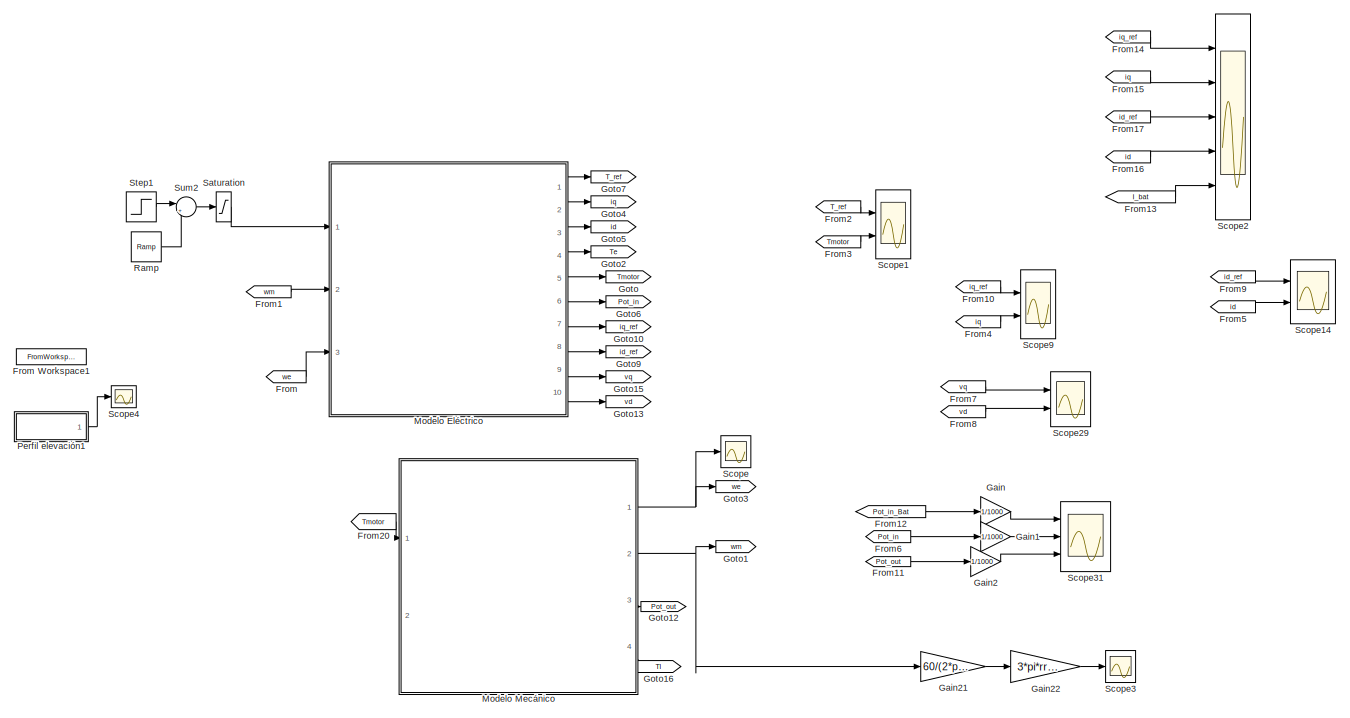
[diagram: root canvas - part 1/2, full width, middle band]
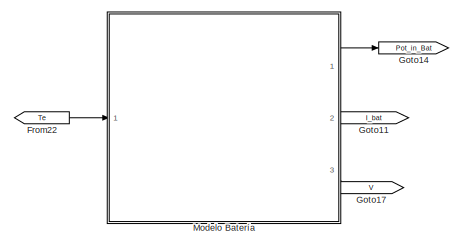
[diagram: root canvas - part 2/2, bottom center region]
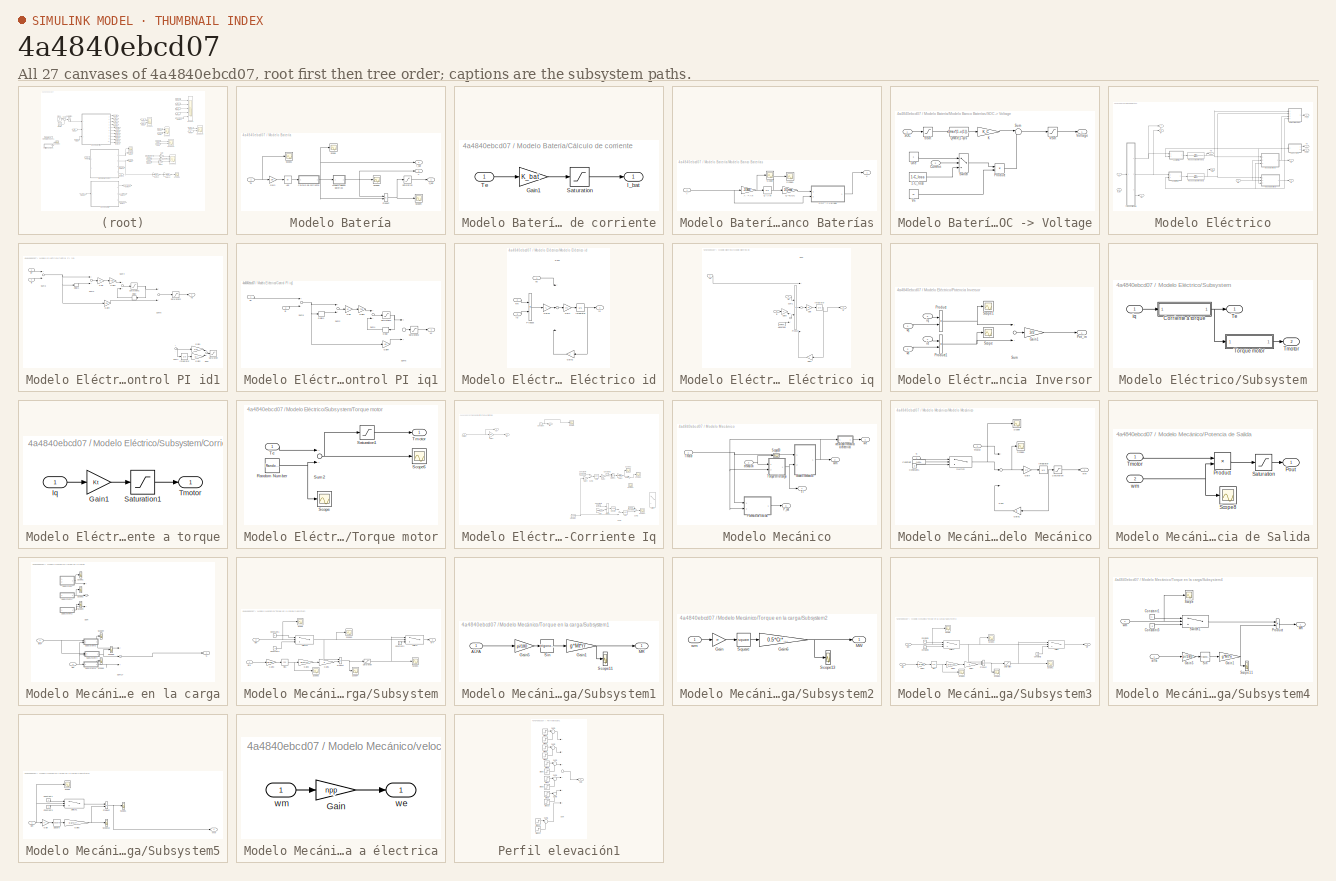
[diagram: thumbnail index - all 27 canvases of the model, root first then tree order]
MODEL slx_4a4840ebcd07
KIND model
CONFIG AbsTol = auto
CONFIG EnableMultiTasking = off
CONFIG FixedStep = auto
CONFIG MaxStep = auto
CONFIG MinStep = auto
CONFIG RelTol = 1e-3
CONFIG SampleTimeConstraint = Unconstrained
CONFIG Solver = VariableStepAuto
CONFIG SolverName = VariableStepAuto
CONFIG StartTime = 0.0
CONFIG StopTime = 10.0
BLOCK [From] From
  GotoTag = we
BLOCK [FromWorkspace] From Workspace1
  Commented = on
  VariableName = torque_real
BLOCK [From] From1
  GotoTag = wm
BLOCK [From] From10
  GotoTag = iq_ref
BLOCK [From] From11
  GotoTag = Pot_out
BLOCK [From] From12
  GotoTag = Pot_in_Bat
BLOCK [From] From13
  GotoTag = I_bat
BLOCK [From] From14
  GotoTag = iq_ref
BLOCK [From] From15
  GotoTag = iq
BLOCK [From] From16
  GotoTag = id
BLOCK [From] From17
  GotoTag = id_ref
BLOCK [From] From2
  GotoTag = T_ref
BLOCK [From] From20
  GotoTag = Tmotor
BLOCK [From] From22
  GotoTag = Te
BLOCK [From] From3
  GotoTag = Tmotor
BLOCK [From] From4
  GotoTag = iq
BLOCK [From] From5
  GotoTag = id
BLOCK [From] From6
  GotoTag = Pot_in
BLOCK [From] From7
  GotoTag = vq
BLOCK [From] From8
  GotoTag = vd
BLOCK [From] From9
  GotoTag = id_ref
BLOCK [Gain] Gain
  Gain = 1/1000
  OutDataTypeStr = Inherit: Inherit via internal rule
  ParamDataTypeStr = Inherit: Inherit via internal rule
  SaturateOnIntegerOverflow = off
BLOCK [Gain] Gain1
  Gain = 1/1000
  OutDataTypeStr = Inherit: Inherit via internal rule
  ParamDataTypeStr = Inherit: Inherit via internal rule
  SaturateOnIntegerOverflow = off
BLOCK [Gain] Gain2
  Gain = 1/1000
  OutDataTypeStr = Inherit: Inherit via internal rule
  ParamDataTypeStr = Inherit: Inherit via internal rule
  SaturateOnIntegerOverflow = off
BLOCK [Gain] Gain21
  Gain = 60/(2*pi)
  OutDataTypeStr = Inherit: Inherit via internal rule
  ParamDataTypeStr = Inherit: Inherit via internal rule
  SaturateOnIntegerOverflow = off
BLOCK [Gain] Gain22
  Gain = 3*pi*rr/25
  OutDataTypeStr = Inherit: Inherit via internal rule
  ParamDataTypeStr = Inherit: Inherit via internal rule
  SaturateOnIntegerOverflow = off
BLOCK [Goto] Goto
  GotoTag = Tmotor
BLOCK [Goto] Goto1
  GotoTag = wm
BLOCK [Goto] Goto10
  GotoTag = iq_ref
BLOCK [Goto] Goto11
  GotoTag = I_bat
BLOCK [Goto] Goto12
  GotoTag = Pot_out
BLOCK [Goto] Goto13
  GotoTag = vd
BLOCK [Goto] Goto14
  GotoTag = Pot_in_Bat
BLOCK [Goto] Goto15
  GotoTag = vq
BLOCK [Goto] Goto16
  GotoTag = Tl
BLOCK [Goto] Goto17
  GotoTag = V
BLOCK [Goto] Goto2
  GotoTag = Te
BLOCK [Goto] Goto3
  GotoTag = we
BLOCK [Goto] Goto4
  GotoTag = iq
BLOCK [Goto] Goto5
  GotoTag = id
BLOCK [Goto] Goto6
  GotoTag = Pot_in
BLOCK [Goto] Goto7
  GotoTag = T_ref
BLOCK [Goto] Goto9
  GotoTag = id_ref
BLOCK [SubSystem] Modelo Batería
  Ports = [1, 3]
  RequestExecContextInheritance = off
BLOCK [Abs] Modelo Batería/Abs
  SaturateOnIntegerOverflow = off
BLOCK [SubSystem] Modelo Batería/Cálculo de corriente
  Ports = [1, 1]
  RequestExecContextInheritance = off
BLOCK [Gain] Modelo Batería/Cálculo de corriente/Gain1
  Gain = K_bat
  OutDataTypeStr = Inherit: Inherit via internal rule
  ParamDataTypeStr = Inherit: Inherit via internal rule
  SaturateOnIntegerOverflow = off
BLOCK [Outport] Modelo Batería/Cálculo de corriente/I_bat
  IconDisplay = Port number
BLOCK [Saturate] Modelo Batería/Cálculo de corriente/Saturation
  InputPortMap = u0
  LowerLimit = 0
  Ports = [1, 1]
  UpperLimit = inf
  ZeroCross = off
BLOCK [Inport] Modelo Batería/Cálculo de corriente/Te
  IconDisplay = Port number
BLOCK [Gain] Modelo Batería/Gain
  Gain = 1/Kt
  OutDataTypeStr = Inherit: Inherit via internal rule
  ParamDataTypeStr = Inherit: Inherit via internal rule
  SaturateOnIntegerOverflow = off
BLOCK [SubSystem] Modelo Batería/Modelo Banco Baterías
  Ports = [1, 1]
  RequestExecContextInheritance = off
BLOCK [Gain] Modelo Batería/Modelo Banco Baterías/A -> Ah
  Gain = -1/3600
  OutDataTypeStr = Inherit: Inherit via internal rule
  ParamDataTypeStr = Inherit: Inherit via internal rule
  SaturateOnIntegerOverflow = off
BLOCK [Inport] Modelo Batería/Modelo Banco Baterías/I
  IconDisplay = Port number
BLOCK [Integrator] Modelo Batería/Modelo Banco Baterías/Q (Ah)
  InitialCondition = Q0
  LimitOutput = on
  LowerSaturationLimit = 0
  Ports = [1, 1]
  UpperSaturationLimit = Qmax
BLOCK [Gain] Modelo Batería/Modelo Banco Baterías/Q->SOC
  Gain = 1/Qmax
  OutDataTypeStr = Inherit: Inherit via internal rule
  ParamDataTypeStr = Inherit: Inherit via internal rule
  SaturateOnIntegerOverflow = off
BLOCK [SubSystem] Modelo Batería/Modelo Banco Baterías/SOC -> Voltage
  Ports = [2, 1]
  RequestExecContextInheritance = off
BLOCK [Constant] Modelo Batería/Modelo Banco Baterías/SOC -> Voltage/1-C_loss
  Value = 1-C_loss
BLOCK [Inport] Modelo Batería/Modelo Banco Baterías/SOC -> Voltage/Current
  IconDisplay = Port number
  Port = 2
BLOCK [Gain] Modelo Batería/Modelo Banco Baterías/SOC -> Voltage/K
  Gain = K_C
  OutDataTypeStr = Inherit: Inherit via internal rule
  ParamDataTypeStr = Inherit: Inherit via internal rule
  SaturateOnIntegerOverflow = off
BLOCK [Constant] Modelo Batería/Modelo Banco Baterías/SOC -> Voltage/One
BLOCK [Product] Modelo Batería/Modelo Banco Baterías/SOC -> Voltage/Product
  InputSameDT = off
  OutDataTypeStr = Inherit: Inherit via internal rule
  Ports = [2, 1]
  SaturateOnIntegerOverflow = off
BLOCK [Fcn] Modelo Batería/Modelo Banco Baterías/SOC -> Voltage/Qmax*(1-s)//s
  Expr = Qmax*(1-u(1))/u(1)
BLOCK [Inport] Modelo Batería/Modelo Banco Baterías/SOC -> Voltage/SOC
  IconDisplay = Port number
BLOCK [Saturate] Modelo Batería/Modelo Banco Baterías/SOC -> Voltage/SSat
  InputPortMap = u0
  LowerLimit = eps
  Ports = [1, 1]
  UpperLimit = 1
BLOCK [Sum] Modelo Batería/Modelo Banco Baterías/SOC -> Voltage/Sum
  IconShape = round
  InputSameDT = off
  Inputs = |-+
  OutDataTypeStr = Inherit: Inherit via internal rule
  Ports = [2, 1]
  SaturateOnIntegerOverflow = off
BLOCK [Switch] Modelo Batería/Modelo Banco Baterías/SOC -> Voltage/Switch
  InputSameDT = off
  SaturateOnIntegerOverflow = off
BLOCK [Saturate] Modelo Batería/Modelo Banco Baterías/SOC -> Voltage/VSat
  InputPortMap = u0
  LowerLimit = 0
  Ports = [1, 1]
  UpperLimit = inf
BLOCK [Constant] Modelo Batería/Modelo Banco Baterías/SOC -> Voltage/Vn
  Value = Vn
BLOCK [Outport] Modelo Batería/Modelo Banco Baterías/SOC -> Voltage/Voltage
  IconDisplay = Port number
BLOCK [Scope] Modelo Batería/Modelo Banco Baterías/Scope
  Floating = off
  NumInputPorts = 1
  Ports = [1]
  ScopeSpecificationString = Simulink.scopes.TimeScopeBlockCfg('CurrentConfiguration', extmgr.ConfigurationSet(extmgr.Configuration('Core','General UI',true),extmgr.Configuration('Core','Source UI',true),extmgr.Configuration('Sources','WiredSimulink',true,'DataLoggingVariableName','ScopeData4'),extmgr.Configuration('Visuals','Time Domain',true,'SerializedDisplays',{struct('MinYLimReal','-0.01077','MaxYLimReal','0.0012','YLabe...<+1364ch>
BLOCK [Scope] Modelo Batería/Modelo Banco Baterías/Scope1
  Floating = off
  NumInputPorts = 1
  Ports = [1]
  ScopeSpecificationString = Simulink.scopes.TimeScopeBlockCfg('CurrentConfiguration', extmgr.ConfigurationSet(extmgr.Configuration('Core','General UI',true),extmgr.Configuration('Core','Source UI',true),extmgr.Configuration('Sources','WiredSimulink',true,'DataLoggingVariableName','ScopeData5'),extmgr.Configuration('Visuals','Time Domain',true,'SerializedDisplays',{struct('MinYLimReal','998.7463','MaxYLimReal','1000.1393','YL...<+1403ch>
BLOCK [Outport] Modelo Batería/Modelo Banco Baterías/V
  IconDisplay = Port number
BLOCK [Outport] Modelo Batería/P_Bat 
  IconDisplay = Port number
BLOCK [Product] Modelo Batería/Product
  InputSameDT = off
  OutDataTypeStr = Inherit: Inherit via internal rule
  Ports = [2, 1]
  RndMeth = Floor
  SaturateOnIntegerOverflow = off
BLOCK [Saturate] Modelo Batería/Saturation
  InputPortMap = u0
  LowerLimit = -8000
  Ports = [1, 1]
  UpperLimit = 8000
BLOCK [Scope] Modelo Batería/Scope
  Floating = off
  NumInputPorts = 1
  Ports = [1]
  ScopeSpecificationString = Simulink.scopes.TimeScopeBlockCfg('CurrentConfiguration', extmgr.ConfigurationSet(extmgr.Configuration('Core','General UI',true),extmgr.Configuration('Core','Source UI',true),extmgr.Configuration('Sources','WiredSimulink',true,'DataLoggingVariableName','ScopeData3'),extmgr.Configuration('Visuals','Time Domain',true,'SerializedDisplays',{struct('MinYLimReal','-4.24964','MaxYLimReal','38.24675','YLa...<+1412ch>
BLOCK [Scope] Modelo Batería/Scope1
  Floating = off
  NumInputPorts = 1
  Ports = [1]
  ScopeSpecificationString = Simulink.scopes.TimeScopeBlockCfg('CurrentConfiguration', extmgr.ConfigurationSet(extmgr.Configuration('Core','General UI',true),extmgr.Configuration('Core','Source UI',true),extmgr.Configuration('Sources','WiredSimulink',true,'DataLoggingVariableName','ScopeData2'),extmgr.Configuration('Visuals','Time Domain',true),extmgr.Configuration('Tools','Plot Navigation',true),extmgr.Configuration('Tools',...<+40ch>
BLOCK [Scope] Modelo Batería/Scope6
  Floating = off
  NumInputPorts = 1
  Ports = [1]
  ScopeSpecificationString = Simulink.scopes.TimeScopeBlockCfg('CurrentConfiguration', extmgr.ConfigurationSet(extmgr.Configuration('Core','General UI',true),extmgr.Configuration('Core','Source UI',true),extmgr.Configuration('Sources','WiredSimulink',true,'DataLoggingVariableName','ScopeData1'),extmgr.Configuration('Visuals','Time Domain',true,'SerializedDisplays',{struct('MinYLimReal','99.9773','MaxYLimReal','100.00252','YLa...<+1423ch>
BLOCK [Scope] Modelo Batería/Scope9
  Floating = off
  NumInputPorts = 1
  Ports = [1]
  ScopeSpecificationString = Simulink.scopes.TimeScopeBlockCfg('CurrentConfiguration', extmgr.ConfigurationSet(extmgr.Configuration('Core','General UI',true),extmgr.Configuration('Core','Source UI',true),extmgr.Configuration('Sources','WiredSimulink',true,'DataLoggingVariableName','ScopeData6'),extmgr.Configuration('Visuals','Time Domain',true,'SerializedDisplays',{struct('MinYLimReal','-772.60271','MaxYLimReal','3915.18523',...<+1432ch>
BLOCK [Inport] Modelo Batería/Te
  IconDisplay = Port number
BLOCK [Outport] Modelo Batería/V
  IconDisplay = Port number
  Port = 3
BLOCK [Outport] Modelo Batería/i_Bat
  IconDisplay = Port number
  Port = 2
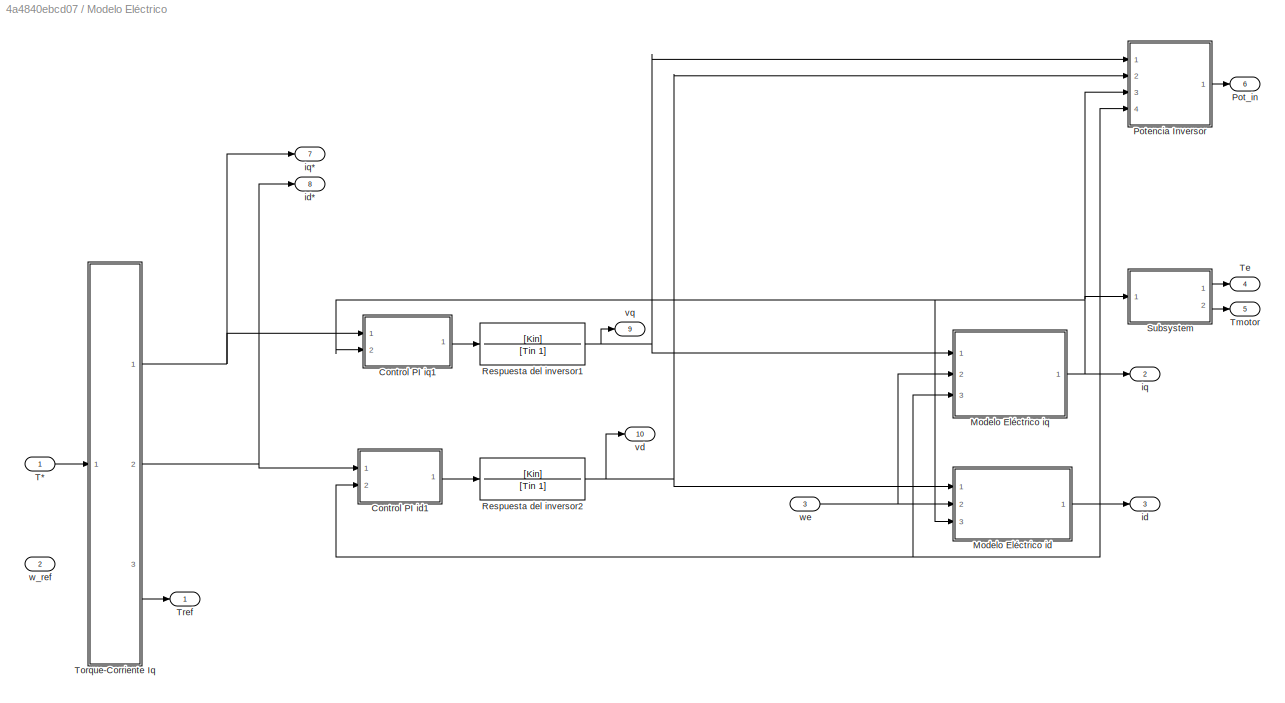
BLOCK [SubSystem] Modelo Eléctrico
  Ports = [3, 10]
  RequestExecContextInheritance = off
BLOCK [SubSystem] Modelo Eléctrico/Control PI id1
  Ports = [2, 1]
  RequestExecContextInheritance = off
BLOCK [Delay] Modelo Eléctrico/Control PI id1/Delay
  DelayLength = 1
  InputPortMap = u0
  Ports = [1, 1]
BLOCK [Delay] Modelo Eléctrico/Control PI id1/Delay1
  DelayLength = 1
  InputPortMap = u0
  Ports = [1, 1]
BLOCK [Gain] Modelo Eléctrico/Control PI id1/Gain
  Gain = Ki
  OutDataTypeStr = Inherit: Inherit via internal rule
  ParamDataTypeStr = Inherit: Inherit via internal rule
  SaturateOnIntegerOverflow = off
BLOCK [Gain] Modelo Eléctrico/Control PI id1/Gain1
  Commented = on
  Gain = Kp
  OutDataTypeStr = Inherit: Inherit via internal rule
  ParamDataTypeStr = Inherit: Inherit via internal rule
  SaturateOnIntegerOverflow = off
BLOCK [Gain] Modelo Eléctrico/Control PI id1/Gain2
  Commented = on
  Gain = Ki
  OutDataTypeStr = Inherit: Inherit via internal rule
  ParamDataTypeStr = Inherit: Inherit via internal rule
  SaturateOnIntegerOverflow = off
BLOCK [Gain] Modelo Eléctrico/Control PI id1/Gain3
  Gain = Ts/2
  OutDataTypeStr = Inherit: Inherit via internal rule
  ParamDataTypeStr = Inherit: Inherit via internal rule
  SaturateOnIntegerOverflow = off
BLOCK [Gain] Modelo Eléctrico/Control PI id1/Gain4
  Gain = Kp
  OutDataTypeStr = Inherit: Inherit via internal rule
  ParamDataTypeStr = Inherit: Inherit via internal rule
  SaturateOnIntegerOverflow = off
BLOCK [Integrator] Modelo Eléctrico/Control PI id1/Integrator
  Commented = on
  Ports = [1, 1]
BLOCK [Saturate] Modelo Eléctrico/Control PI id1/Saturation
  Commented = on
  InputPortMap = u0
  LowerLimit = -Vmax
  Ports = [1, 1]
  UpperLimit = Vmax
BLOCK [Saturate] Modelo Eléctrico/Control PI id1/Saturation1
  InputPortMap = u0
  LowerLimit = -inf
  Ports = [1, 1]
  UpperLimit = inf
BLOCK [Saturate] Modelo Eléctrico/Control PI id1/Saturation2
  InputPortMap = u0
  LowerLimit = -Vmax
  Ports = [1, 1]
  UpperLimit = Vmax
BLOCK [Sum] Modelo Eléctrico/Control PI id1/Sum
  Commented = on
  InputSameDT = off
  OutDataTypeStr = Inherit: Inherit via internal rule
  Ports = [2, 1]
  SaturateOnIntegerOverflow = off
BLOCK [Sum] Modelo Eléctrico/Control PI id1/Sum1
  Commented = on
  InputSameDT = off
  Inputs = +-
  OutDataTypeStr = Inherit: Inherit via internal rule
  Ports = [2, 1]
  SaturateOnIntegerOverflow = off
BLOCK [Sum] Modelo Eléctrico/Control PI id1/Sum2
  InputSameDT = off
  OutDataTypeStr = Inherit: Inherit via internal rule
  Ports = [2, 1]
  SaturateOnIntegerOverflow = off
BLOCK [Sum] Modelo Eléctrico/Control PI id1/Sum3
  InputSameDT = off
  Inputs = +-
  OutDataTypeStr = Inherit: Inherit via internal rule
  Ports = [2, 1]
  SaturateOnIntegerOverflow = off
BLOCK [Sum] Modelo Eléctrico/Control PI id1/Sum4
  InputSameDT = off
  OutDataTypeStr = Inherit: Inherit via internal rule
  Ports = [2, 1]
  SaturateOnIntegerOverflow = off
BLOCK [Sum] Modelo Eléctrico/Control PI id1/Sum5
  InputSameDT = off
  OutDataTypeStr = Inherit: Inherit via internal rule
  Ports = [2, 1]
  SaturateOnIntegerOverflow = off
BLOCK [Inport] Modelo Eléctrico/Control PI id1/id
  IconDisplay = Port number
  Port = 2
BLOCK [Inport] Modelo Eléctrico/Control PI id1/id*
  IconDisplay = Port number
BLOCK [Outport] Modelo Eléctrico/Control PI id1/vd
  IconDisplay = Port number
BLOCK [SubSystem] Modelo Eléctrico/Control PI iq1
  Ports = [2, 1]
  RequestExecContextInheritance = off
BLOCK [Delay] Modelo Eléctrico/Control PI iq1/Delay
  DelayLength = 1
  InputPortMap = u0
  Ports = [1, 1]
BLOCK [Delay] Modelo Eléctrico/Control PI iq1/Delay1
  DelayLength = 1
  InputPortMap = u0
  Ports = [1, 1]
BLOCK [Gain] Modelo Eléctrico/Control PI iq1/Gain
  Gain = Ki
  OutDataTypeStr = Inherit: Inherit via internal rule
  ParamDataTypeStr = Inherit: Inherit via internal rule
  SaturateOnIntegerOverflow = off
BLOCK [Gain] Modelo Eléctrico/Control PI iq1/Gain3
  Gain = Ts/2
  OutDataTypeStr = Inherit: Inherit via internal rule
  ParamDataTypeStr = Inherit: Inherit via internal rule
  SaturateOnIntegerOverflow = off
BLOCK [Gain] Modelo Eléctrico/Control PI iq1/Gain4
  Gain = Kp
  OutDataTypeStr = Inherit: Inherit via internal rule
  ParamDataTypeStr = Inherit: Inherit via internal rule
  SaturateOnIntegerOverflow = off
BLOCK [Saturate] Modelo Eléctrico/Control PI iq1/Saturation1
  InputPortMap = u0
  LowerLimit = -inf
  Ports = [1, 1]
  UpperLimit = inf
BLOCK [Saturate] Modelo Eléctrico/Control PI iq1/Saturation2
  InputPortMap = u0
  LowerLimit = -Vmax
  Ports = [1, 1]
  UpperLimit = Vmax
BLOCK [Sum] Modelo Eléctrico/Control PI iq1/Sum2
  InputSameDT = off
  OutDataTypeStr = Inherit: Inherit via internal rule
  Ports = [2, 1]
  SaturateOnIntegerOverflow = off
BLOCK [Sum] Modelo Eléctrico/Control PI iq1/Sum3
  InputSameDT = off
  Inputs = +-
  OutDataTypeStr = Inherit: Inherit via internal rule
  Ports = [2, 1]
  SaturateOnIntegerOverflow = off
BLOCK [Sum] Modelo Eléctrico/Control PI iq1/Sum4
  InputSameDT = off
  OutDataTypeStr = Inherit: Inherit via internal rule
  Ports = [2, 1]
  SaturateOnIntegerOverflow = off
BLOCK [Sum] Modelo Eléctrico/Control PI iq1/Sum5
  InputSameDT = off
  OutDataTypeStr = Inherit: Inherit via internal rule
  Ports = [2, 1]
  SaturateOnIntegerOverflow = off
BLOCK [Inport] Modelo Eléctrico/Control PI iq1/iq
  IconDisplay = Port number
  Port = 2
BLOCK [Inport] Modelo Eléctrico/Control PI iq1/iq*
  IconDisplay = Port number
BLOCK [Outport] Modelo Eléctrico/Control PI iq1/vq
  IconDisplay = Port number
BLOCK [SubSystem] Modelo Eléctrico/Modelo Eléctrico id
  Ports = [3, 1]
  RequestExecContextInheritance = off
BLOCK [Gain] Modelo Eléctrico/Modelo Eléctrico id/Gain
  Gain = 1/L
  OutDataTypeStr = Inherit: Inherit via internal rule
  ParamDataTypeStr = Inherit: Inherit via internal rule
  SaturateOnIntegerOverflow = off
BLOCK [Gain] Modelo Eléctrico/Modelo Eléctrico id/Gain2
  Gain = r
  OutDataTypeStr = Inherit: Inherit via internal rule
  ParamDataTypeStr = Inherit: Inherit via internal rule
  SaturateOnIntegerOverflow = off
BLOCK [Gain] Modelo Eléctrico/Modelo Eléctrico id/Gain3
  Gain = L
  OutDataTypeStr = Inherit: Inherit via internal rule
  ParamDataTypeStr = Inherit: Inherit via internal rule
  SaturateOnIntegerOverflow = off
BLOCK [Integrator] Modelo Eléctrico/Modelo Eléctrico id/Integrator
  Ports = [1, 1]
BLOCK [Product] Modelo Eléctrico/Modelo Eléctrico id/Product
  InputSameDT = off
  OutDataTypeStr = Inherit: Inherit via internal rule
  Ports = [2, 1]
  RndMeth = Floor
  SaturateOnIntegerOverflow = off
BLOCK [Sum] Modelo Eléctrico/Modelo Eléctrico id/Sum
  InputSameDT = off
  Inputs = ++-
  OutDataTypeStr = Inherit: Inherit via internal rule
  Ports = [3, 1]
  SaturateOnIntegerOverflow = off
BLOCK [Outport] Modelo Eléctrico/Modelo Eléctrico id/id
  IconDisplay = Port number
BLOCK [Inport] Modelo Eléctrico/Modelo Eléctrico id/iq
  IconDisplay = Port number
  Port = 3
BLOCK [Inport] Modelo Eléctrico/Modelo Eléctrico id/vd
  IconDisplay = Port number
BLOCK [Inport] Modelo Eléctrico/Modelo Eléctrico id/we
  IconDisplay = Port number
  Port = 2
BLOCK [SubSystem] Modelo Eléctrico/Modelo Eléctrico iq
  Ports = [3, 1]
  RequestExecContextInheritance = off
BLOCK [Constant] Modelo Eléctrico/Modelo Eléctrico iq/Constant
  Value = lamdaf
BLOCK [Gain] Modelo Eléctrico/Modelo Eléctrico iq/Gain
  Gain = 1/L
  OutDataTypeStr = Inherit: Inherit via internal rule
  ParamDataTypeStr = Inherit: Inherit via internal rule
  SaturateOnIntegerOverflow = off
BLOCK [Gain] Modelo Eléctrico/Modelo Eléctrico iq/Gain1
  Gain = r
  OutDataTypeStr = Inherit: Inherit via internal rule
  ParamDataTypeStr = Inherit: Inherit via internal rule
  SaturateOnIntegerOverflow = off
BLOCK [Gain] Modelo Eléctrico/Modelo Eléctrico iq/Gain3
  Gain = L
  OutDataTypeStr = Inherit: Inherit via internal rule
  ParamDataTypeStr = Inherit: Inherit via internal rule
  SaturateOnIntegerOverflow = off
BLOCK [Integrator] Modelo Eléctrico/Modelo Eléctrico iq/Integrator
  Ports = [1, 1]
BLOCK [Product] Modelo Eléctrico/Modelo Eléctrico iq/Product
  InputSameDT = off
  OutDataTypeStr = Inherit: Inherit via internal rule
  Ports = [2, 1]
  RndMeth = Floor
  SaturateOnIntegerOverflow = off
BLOCK [Sum] Modelo Eléctrico/Modelo Eléctrico iq/Sum
  InputSameDT = off
  Inputs = +--
  OutDataTypeStr = Inherit: Inherit via internal rule
  Ports = [3, 1]
  SaturateOnIntegerOverflow = off
BLOCK [Sum] Modelo Eléctrico/Modelo Eléctrico iq/Sum1
  InputSameDT = off
  OutDataTypeStr = Inherit: Inherit via internal rule
  Ports = [2, 1]
  SaturateOnIntegerOverflow = off
BLOCK [Inport] Modelo Eléctrico/Modelo Eléctrico iq/id
  IconDisplay = Port number
  Port = 3
BLOCK [Outport] Modelo Eléctrico/Modelo Eléctrico iq/iq
  IconDisplay = Port number
BLOCK [Inport] Modelo Eléctrico/Modelo Eléctrico iq/vq
  IconDisplay = Port number
BLOCK [Inport] Modelo Eléctrico/Modelo Eléctrico iq/we
  IconDisplay = Port number
  Port = 2
BLOCK [Outport] Modelo Eléctrico/Pot_in
  IconDisplay = Port number
  Port = 6
BLOCK [SubSystem] Modelo Eléctrico/Potencia Inversor
  Ports = [4, 1]
  RequestExecContextInheritance = off
BLOCK [Gain] Modelo Eléctrico/Potencia Inversor/Gain1
  Gain = 3/2
  OutDataTypeStr = Inherit: Inherit via internal rule
  ParamDataTypeStr = Inherit: Inherit via internal rule
  SaturateOnIntegerOverflow = off
BLOCK [Outport] Modelo Eléctrico/Potencia Inversor/Pot_in
  IconDisplay = Port number
BLOCK [Product] Modelo Eléctrico/Potencia Inversor/Product
  InputSameDT = off
  OutDataTypeStr = Inherit: Inherit via internal rule
  Ports = [2, 1]
  RndMeth = Floor
  SaturateOnIntegerOverflow = off
BLOCK [Product] Modelo Eléctrico/Potencia Inversor/Product1
  InputSameDT = off
  OutDataTypeStr = Inherit: Inherit via internal rule
  Ports = [2, 1]
  RndMeth = Floor
  SaturateOnIntegerOverflow = off
BLOCK [Scope] Modelo Eléctrico/Potencia Inversor/Scope
  Floating = off
  NumInputPorts = 1
  Ports = [1]
  ScopeSpecificationString = Simulink.scopes.TimeScopeBlockCfg('CurrentConfiguration', extmgr.ConfigurationSet(extmgr.Configuration('Core','General UI',true),extmgr.Configuration('Core','Source UI',true),extmgr.Configuration('Sources','WiredSimulink',true,'DataLoggingVariableName','ScopeData2'),extmgr.Configuration('Visuals','Time Domain',true,'SerializedDisplays',{struct('MinYLimReal','-3.30287','MaxYLimReal','1.41198','YLab...<+1396ch>
BLOCK [Scope] Modelo Eléctrico/Potencia Inversor/Scope1
  Floating = off
  NumInputPorts = 1
  Ports = [1]
  ScopeSpecificationString = Simulink.scopes.TimeScopeBlockCfg('CurrentConfiguration', extmgr.ConfigurationSet(extmgr.Configuration('Core','General UI',true),extmgr.Configuration('Core','Source UI',true),extmgr.Configuration('Sources','WiredSimulink',true,'DataLoggingVariableName','ScopeData3'),extmgr.Configuration('Visuals','Time Domain',true,'SerializedDisplays',{struct('MinYLimReal','-80.69947','MaxYLimReal','726.29523','Y...<+1404ch>
BLOCK [Sum] Modelo Eléctrico/Potencia Inversor/Sum
  InputSameDT = off
  OutDataTypeStr = Inherit: Inherit via internal rule
  Ports = [2, 1]
  SaturateOnIntegerOverflow = off
BLOCK [Inport] Modelo Eléctrico/Potencia Inversor/id
  IconDisplay = Port number
  Port = 4
BLOCK [Inport] Modelo Eléctrico/Potencia Inversor/iq
  IconDisplay = Port number
  Port = 3
BLOCK [Inport] Modelo Eléctrico/Potencia Inversor/vd
  IconDisplay = Port number
  Port = 2
BLOCK [Inport] Modelo Eléctrico/Potencia Inversor/vq
  IconDisplay = Port number
BLOCK [TransferFcn] Modelo Eléctrico/Respuesta del inversor1
  Denominator = [Tin 1]
  Numerator = [Kin]
BLOCK [TransferFcn] Modelo Eléctrico/Respuesta del inversor2
  Denominator = [Tin 1]
  Numerator = [Kin]
BLOCK [SubSystem] Modelo Eléctrico/Subsystem
  Ports = [1, 2]
  RequestExecContextInheritance = off
BLOCK [SubSystem] Modelo Eléctrico/Subsystem/Corriente a torque
  Ports = [1, 1]
  RequestExecContextInheritance = off
BLOCK [Gain] Modelo Eléctrico/Subsystem/Corriente a torque/Gain1
  Gain = Kt
  OutDataTypeStr = Inherit: Inherit via internal rule
  ParamDataTypeStr = Inherit: Inherit via internal rule
  SaturateOnIntegerOverflow = off
BLOCK [Inport] Modelo Eléctrico/Subsystem/Corriente a torque/Iq
  IconDisplay = Port number
BLOCK [Saturate] Modelo Eléctrico/Subsystem/Corriente a torque/Saturation1
  InputPortMap = u0
  LowerLimit = -TORQUE_MAX
  Ports = [1, 1]
  UpperLimit = TORQUE_MAX
BLOCK [Outport] Modelo Eléctrico/Subsystem/Corriente a torque/Tmotor 
  IconDisplay = Port number
BLOCK [Outport] Modelo Eléctrico/Subsystem/Te
  IconDisplay = Port number
BLOCK [Outport] Modelo Eléctrico/Subsystem/Tmotor
  IconDisplay = Port number
  Port = 2
BLOCK [SubSystem] Modelo Eléctrico/Subsystem/Torque motor
  Ports = [1, 1]
  RequestExecContextInheritance = off
BLOCK [RandomNumber] Modelo Eléctrico/Subsystem/Torque motor/Random Number
  Mean = Xnoise
  SampleTime = 0.01
  Variance = Varnoise
BLOCK [Saturate] Modelo Eléctrico/Subsystem/Torque motor/Saturation1
  InputPortMap = u0
  LowerLimit = -TORQUE_MAX
  Ports = [1, 1]
  UpperLimit = TORQUE_MAX
BLOCK [Scope] Modelo Eléctrico/Subsystem/Torque motor/Scope
  Floating = off
  NumInputPorts = 1
  Ports = [1]
  ScopeSpecificationString = Simulink.scopes.TimeScopeBlockCfg('CurrentConfiguration', extmgr.ConfigurationSet(extmgr.Configuration('Core','General UI',true),extmgr.Configuration('Core','Source UI',true),extmgr.Configuration('Sources','WiredSimulink',true,'DataLoggingVariableName','ScopeData2'),extmgr.Configuration('Visuals','Time Domain',true,'SerializedDisplays',{struct('MinYLimReal','-1.00000','MaxYLimReal','1.00000','YLab...<+1368ch>
BLOCK [Scope] Modelo Eléctrico/Subsystem/Torque motor/Scope6
  Floating = off
  NumInputPorts = 1
  Ports = [1]
  ScopeSpecificationString = Simulink.scopes.TimeScopeBlockCfg('CurrentConfiguration', extmgr.ConfigurationSet(extmgr.Configuration('Core','General UI',true),extmgr.Configuration('Core','Source UI',true),extmgr.Configuration('Sources','WiredSimulink',true,'DataLoggingVariableName','ScopeData5'),extmgr.Configuration('Visuals','Time Domain',true,'SerializedDisplays',{struct('MinYLimReal','-16.83437','MaxYLimReal','151.50934','Y...<+1373ch>
BLOCK [Sum] Modelo Eléctrico/Subsystem/Torque motor/Sum2
  InputSameDT = off
  OutDataTypeStr = Inherit: Inherit via internal rule
  Ports = [2, 1]
  SaturateOnIntegerOverflow = off
BLOCK [Inport] Modelo Eléctrico/Subsystem/Torque motor/Te
  IconDisplay = Port number
BLOCK [Outport] Modelo Eléctrico/Subsystem/Torque motor/Tmotor
  IconDisplay = Port number
BLOCK [Inport] Modelo Eléctrico/Subsystem/iq
  IconDisplay = Port number
BLOCK [Inport] Modelo Eléctrico/T*
  IconDisplay = Port number
BLOCK [Outport] Modelo Eléctrico/Te
  IconDisplay = Port number
  Port = 4
BLOCK [Outport] Modelo Eléctrico/Tmotor
  IconDisplay = Port number
  Port = 5
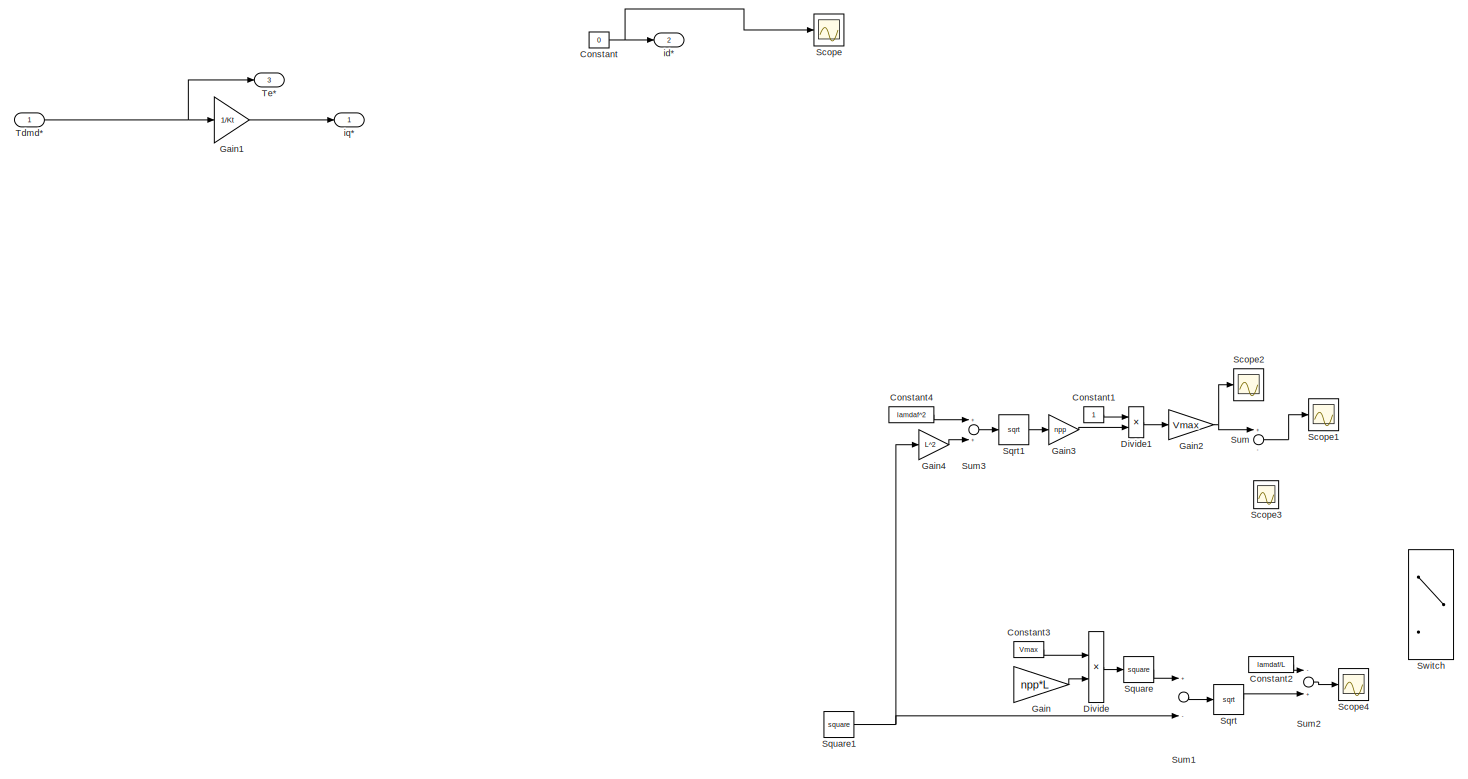
[diagram: Modelo Eléctrico/Torque-Corriente Iq - part 1/1, most of the canvas]
BLOCK [SubSystem] Modelo Eléctrico/Torque-Corriente Iq
  Ports = [1, 3]
  RequestExecContextInheritance = off
BLOCK [Constant] Modelo Eléctrico/Torque-Corriente Iq/Constant
  Value = 0
BLOCK [Constant] Modelo Eléctrico/Torque-Corriente Iq/Constant1
  Commented = on
BLOCK [Constant] Modelo Eléctrico/Torque-Corriente Iq/Constant2
  Commented = on
  Value = lamdaf/L
BLOCK [Constant] Modelo Eléctrico/Torque-Corriente Iq/Constant3
  Commented = on
  Value = Vmax
BLOCK [Constant] Modelo Eléctrico/Torque-Corriente Iq/Constant4
  Commented = on
  Value = lamdaf^2
BLOCK [Product] Modelo Eléctrico/Torque-Corriente Iq/Divide
  Commented = on
  InputSameDT = off
  Inputs = */
  OutDataTypeStr = Inherit: Inherit via internal rule
  Ports = [2, 1]
  RndMeth = Floor
  SaturateOnIntegerOverflow = off
BLOCK [Product] Modelo Eléctrico/Torque-Corriente Iq/Divide1
  Commented = on
  InputSameDT = off
  Inputs = */
  OutDataTypeStr = Inherit: Inherit via internal rule
  Ports = [2, 1]
  RndMeth = Floor
  SaturateOnIntegerOverflow = off
BLOCK [Gain] Modelo Eléctrico/Torque-Corriente Iq/Gain
  Commented = on
  Gain = npp*L
  OutDataTypeStr = Inherit: Inherit via internal rule
  ParamDataTypeStr = Inherit: Inherit via internal rule
  SaturateOnIntegerOverflow = off
BLOCK [Gain] Modelo Eléctrico/Torque-Corriente Iq/Gain1
  Gain = 1/Kt
  OutDataTypeStr = Inherit: Inherit via internal rule
  ParamDataTypeStr = Inherit: Inherit via internal rule
  SaturateOnIntegerOverflow = off
BLOCK [Gain] Modelo Eléctrico/Torque-Corriente Iq/Gain2
  Commented = on
  Gain = Vmax
  OutDataTypeStr = Inherit: Inherit via internal rule
  ParamDataTypeStr = Inherit: Inherit via internal rule
  SaturateOnIntegerOverflow = off
BLOCK [Gain] Modelo Eléctrico/Torque-Corriente Iq/Gain3
  Commented = on
  Gain = npp
  OutDataTypeStr = Inherit: Inherit via internal rule
  ParamDataTypeStr = Inherit: Inherit via internal rule
  SaturateOnIntegerOverflow = off
BLOCK [Gain] Modelo Eléctrico/Torque-Corriente Iq/Gain4
  Commented = on
  Gain = L^2
  OutDataTypeStr = Inherit: Inherit via internal rule
  ParamDataTypeStr = Inherit: Inherit via internal rule
  SaturateOnIntegerOverflow = off
BLOCK [Scope] Modelo Eléctrico/Torque-Corriente Iq/Scope
  Floating = off
  NumInputPorts = 1
  Ports = [1]
  ScopeSpecificationString = Simulink.scopes.TimeScopeBlockCfg('CurrentConfiguration', extmgr.ConfigurationSet(extmgr.Configuration('Core','General UI',true),extmgr.Configuration('Core','Source UI',true),extmgr.Configuration('Sources','WiredSimulink',true,'DataLoggingVariableName','ScopeData3'),extmgr.Configuration('Visuals','Time Domain',true,'SerializedDisplays',{struct('MinYLimReal','0.0000009','MaxYLimReal','0.0000011','Y...<+1379ch>
BLOCK [Scope] Modelo Eléctrico/Torque-Corriente Iq/Scope1
  Commented = on
  Floating = off
  NumInputPorts = 1
  Ports = [1]
  ScopeSpecificationString = Simulink.scopes.TimeScopeBlockCfg('CurrentConfiguration', extmgr.ConfigurationSet(extmgr.Configuration('Core','General UI',true),extmgr.Configuration('Core','Source UI',true),extmgr.Configuration('Sources','WiredSimulink',true,'DataLoggingVariableName','ScopeData1'),extmgr.Configuration('Visuals','Time Domain',true,'SerializedDisplays',{struct('MinYLimReal','53.06506','MaxYLimReal','194.4276','YLa...<+1401ch>
BLOCK [Scope] Modelo Eléctrico/Torque-Corriente Iq/Scope2
  Commented = on
  Floating = off
  NumInputPorts = 1
  Ports = [1]
  ScopeSpecificationString = Simulink.scopes.TimeScopeBlockCfg('CurrentConfiguration', extmgr.ConfigurationSet(extmgr.Configuration('Core','General UI',true),extmgr.Configuration('Core','Source UI',true),extmgr.Configuration('Sources','WiredSimulink',true,'DataLoggingVariableName','ScopeData2'),extmgr.Configuration('Visuals','Time Domain',true,'SerializedDisplays',{struct('MinYLimReal','131.86419','MaxYLimReal','134.18895','Y...<+1407ch>
BLOCK [Scope] Modelo Eléctrico/Torque-Corriente Iq/Scope3
  Commented = on
  Floating = off
  NumInputPorts = 1
  Ports = [1]
  ScopeSpecificationString = Simulink.scopes.TimeScopeBlockCfg('CurrentConfiguration', extmgr.ConfigurationSet(extmgr.Configuration('Core','General UI',true),extmgr.Configuration('Core','Source UI',true),extmgr.Configuration('Sources','WiredSimulink',true,'DataLoggingVariableName','ScopeData3'),extmgr.Configuration('Visuals','Time Domain',true,'SerializedDisplays',{struct('MinYLimReal','-3.91387','MaxYLimReal','35.22486','YLa...<+1400ch>
BLOCK [Scope] Modelo Eléctrico/Torque-Corriente Iq/Scope4
  Commented = on
  Floating = off
  NumInputPorts = 1
  Ports = [1]
  ScopeSpecificationString = Simulink.scopes.TimeScopeBlockCfg('CurrentConfiguration', extmgr.ConfigurationSet(extmgr.Configuration('Core','General UI',true),extmgr.Configuration('Core','Source UI',true),extmgr.Configuration('Sources','WiredSimulink',true,'DataLoggingVariableName','ScopeData4'),extmgr.Configuration('Visuals','Time Domain',true,'SerializedDisplays',{struct('MinYLimReal','-109879652577.30569','MaxYLimReal','988...<+1482ch>
BLOCK [Sqrt] Modelo Eléctrico/Torque-Corriente Iq/Sqrt
  Commented = on
BLOCK [Sqrt] Modelo Eléctrico/Torque-Corriente Iq/Sqrt1
  Commented = on
BLOCK [Math] Modelo Eléctrico/Torque-Corriente Iq/Square
  Commented = on
  Operator = square
  Ports = [1, 1]
BLOCK [Math] Modelo Eléctrico/Torque-Corriente Iq/Square1
  Commented = on
  Operator = square
  Ports = [1, 1]
BLOCK [Sum] Modelo Eléctrico/Torque-Corriente Iq/Sum
  Commented = on
  InputSameDT = off
  Inputs = +-
  OutDataTypeStr = Inherit: Inherit via internal rule
  Ports = [2, 1]
  SaturateOnIntegerOverflow = off
BLOCK [Sum] Modelo Eléctrico/Torque-Corriente Iq/Sum1
  Commented = on
  InputSameDT = off
  Inputs = +-
  OutDataTypeStr = Inherit: Inherit via internal rule
  Ports = [2, 1]
  SaturateOnIntegerOverflow = off
BLOCK [Sum] Modelo Eléctrico/Torque-Corriente Iq/Sum2
  Commented = on
  InputSameDT = off
  Inputs = -+
  OutDataTypeStr = Inherit: Inherit via internal rule
  Ports = [2, 1]
  SaturateOnIntegerOverflow = off
BLOCK [Sum] Modelo Eléctrico/Torque-Corriente Iq/Sum3
  Commented = on
  InputSameDT = off
  OutDataTypeStr = Inherit: Inherit via internal rule
  Ports = [2, 1]
  SaturateOnIntegerOverflow = off
BLOCK [Switch] Modelo Eléctrico/Torque-Corriente Iq/Switch
  Commented = on
  Criteria = u2 > Threshold
  InputSameDT = off
  SaturateOnIntegerOverflow = off
BLOCK [Inport] Modelo Eléctrico/Torque-Corriente Iq/Tdmd*
  IconDisplay = Port number
BLOCK [Outport] Modelo Eléctrico/Torque-Corriente Iq/Te*
  IconDisplay = Port number
  Port = 3
BLOCK [Outport] Modelo Eléctrico/Torque-Corriente Iq/id*
  IconDisplay = Port number
  Port = 2
BLOCK [Outport] Modelo Eléctrico/Torque-Corriente Iq/iq*
  IconDisplay = Port number
BLOCK [Outport] Modelo Eléctrico/Tref
  IconDisplay = Port number
BLOCK [Outport] Modelo Eléctrico/id
  IconDisplay = Port number
  Port = 3
BLOCK [Outport] Modelo Eléctrico/id*
  IconDisplay = Port number
  Port = 8
BLOCK [Outport] Modelo Eléctrico/iq
  IconDisplay = Port number
  Port = 2
BLOCK [Outport] Modelo Eléctrico/iq*
  IconDisplay = Port number
  Port = 7
BLOCK [Outport] Modelo Eléctrico/vd
  IconDisplay = Port number
  Port = 10
BLOCK [Outport] Modelo Eléctrico/vq
  IconDisplay = Port number
  Port = 9
BLOCK [Inport] Modelo Eléctrico/w_ref
  IconDisplay = Port number
  Port = 2
BLOCK [Inport] Modelo Eléctrico/we
  IconDisplay = Port number
  Port = 3
BLOCK [SubSystem] Modelo Mecánico
  Ports = [2, 4]
  RequestExecContextInheritance = off
BLOCK [SubSystem] Modelo Mecánico/Modelo Mecánico
  Ports = [2, 1]
  RequestExecContextInheritance = off
BLOCK [Constant] Modelo Mecánico/Modelo Mecánico/Constant
  Value = CARGA
BLOCK [Constant] Modelo Mecánico/Modelo Mecánico/Constant1
  Value = 0
BLOCK [Gain] Modelo Mecánico/Modelo Mecánico/Gain
  Gain = 1/J
  OutDataTypeStr = Inherit: Inherit via internal rule
  ParamDataTypeStr = Inherit: Inherit via internal rule
  SaturateOnIntegerOverflow = off
BLOCK [Gain] Modelo Mecánico/Modelo Mecánico/Gain1
  Gain = B
  OutDataTypeStr = Inherit: Inherit via internal rule
  ParamDataTypeStr = Inherit: Inherit via internal rule
  SaturateOnIntegerOverflow = off
BLOCK [Integrator] Modelo Mecánico/Modelo Mecánico/Integrator
  Ports = [1, 1]
BLOCK [Saturate] Modelo Mecánico/Modelo Mecánico/Saturation
  InputPortMap = u0
  LowerLimit = -(2*pi*RPM_MAX)/60
  Ports = [1, 1]
  UpperLimit = (2*pi*RPM_MAX)/60
  ZeroCross = off
BLOCK [Scope] Modelo Mecánico/Modelo Mecánico/Scope
  Floating = off
  NumInputPorts = 1
  Ports = [1]
  ScopeSpecificationString = Simulink.scopes.TimeScopeBlockCfg('CurrentConfiguration', extmgr.ConfigurationSet(extmgr.Configuration('Core','General UI',true),extmgr.Configuration('Core','Source UI',true),extmgr.Configuration('Sources','WiredSimulink',true,'DataLoggingVariableName','ScopeData1'),extmgr.Configuration('Visuals','Time Domain',true,'SerializedDisplays',{struct('MinYLimReal','-8.32231','MaxYLimReal','74.90078','YLa...<+1369ch>
BLOCK [Scope] Modelo Mecánico/Modelo Mecánico/Scope1
  Floating = off
  NumInputPorts = 1
  Ports = [1]
  ScopeSpecificationString = Simulink.scopes.TimeScopeBlockCfg('CurrentConfiguration', extmgr.ConfigurationSet(extmgr.Configuration('Core','General UI',true),extmgr.Configuration('Core','Source UI',true),extmgr.Configuration('Sources','WiredSimulink',true,'DataLoggingVariableName','ScopeData31'),extmgr.Configuration('Visuals','Time Domain',true,'SerializedDisplays',{struct('MinYLimReal','-73.60119','MaxYLimReal','67.94271','Y...<+1369ch>
BLOCK [Sum] Modelo Mecánico/Modelo Mecánico/Sum
  InputSameDT = off
  Inputs = +--
  OutDataTypeStr = Inherit: Inherit via internal rule
  Ports = [3, 1]
  SaturateOnIntegerOverflow = off
BLOCK [Switch] Modelo Mecánico/Modelo Mecánico/Switch
  Criteria = u2 > Threshold
  InputSameDT = off
  SaturateOnIntegerOverflow = off
BLOCK [Inport] Modelo Mecánico/Modelo Mecánico/Tl
  IconDisplay = Port number
  Port = 2
BLOCK [Inport] Modelo Mecánico/Modelo Mecánico/Tmotor
  IconDisplay = Port number
BLOCK [Outport] Modelo Mecánico/Modelo Mecánico/wm
  IconDisplay = Port number
BLOCK [Outport] Modelo Mecánico/P_out
  IconDisplay = Port number
  Port = 3
BLOCK [SubSystem] Modelo Mecánico/Potencia de Salida
  Ports = [2, 1]
  RequestExecContextInheritance = off
BLOCK [Outport] Modelo Mecánico/Potencia de Salida/Pout
  IconDisplay = Port number
BLOCK [Product] Modelo Mecánico/Potencia de Salida/Product
  InputSameDT = off
  OutDataTypeStr = Inherit: Inherit via internal rule
  Ports = [2, 1]
  RndMeth = Floor
  SaturateOnIntegerOverflow = off
BLOCK [Saturate] Modelo Mecánico/Potencia de Salida/Saturation
  InputPortMap = u0
  LowerLimit = -4000
  Ports = [1, 1]
  UpperLimit = 4000
BLOCK [Scope] Modelo Mecánico/Potencia de Salida/Scope8
  Floating = off
  NumInputPorts = 1
  Ports = [1]
  ScopeSpecificationString = Simulink.scopes.TimeScopeBlockCfg('CurrentConfiguration', extmgr.ConfigurationSet(extmgr.Configuration('Core','General UI',true),extmgr.Configuration('Core','Source UI',true),extmgr.Configuration('Sources','WiredSimulink',true,'DataLoggingVariableName','ScopeData7'),extmgr.Configuration('Visuals','Time Domain',true,'SerializedDisplays',{struct('MinYLimReal','-61.77952','MaxYLimReal','94.25085','YL...<+1367ch>
BLOCK [Inport] Modelo Mecánico/Potencia de Salida/Tmotor
  IconDisplay = Port number
BLOCK [Inport] Modelo Mecánico/Potencia de Salida/wm
  IconDisplay = Port number
  Port = 2
BLOCK [Scope] Modelo Mecánico/Scope30
  Floating = off
  NumInputPorts = 1
  Ports = [1]
  ScopeSpecificationString = Simulink.scopes.TimeScopeBlockCfg('CurrentConfiguration', extmgr.ConfigurationSet(extmgr.Configuration('Core','General UI',true,'FigureColor',[1 1 1]),extmgr.Configuration('Core','Source UI',true),extmgr.Configuration('Sources','WiredSimulink',true,'DataLoggingVariableName','ScopeData9'),extmgr.Configuration('Visuals','Time Domain',true,'SerializedDisplays',{struct('MinYLimReal','-1.00000','MaxYLi...<+1603ch>
BLOCK [Outport] Modelo Mecánico/Tl
  IconDisplay = Port number
  Port = 4
BLOCK [Inport] Modelo Mecánico/Tmotor
  IconDisplay = Port number
BLOCK [SubSystem] Modelo Mecánico/Torque en la carga
  Ports = [2, 1]
  RequestExecContextInheritance = off
BLOCK [Scope] Modelo Mecánico/Torque en la carga/Scope1
  Commented = on
  Floating = off
  NumInputPorts = 1
  Ports = [1]
  ScopeSpecificationString = Simulink.scopes.TimeScopeBlockCfg('CurrentConfiguration', extmgr.ConfigurationSet(extmgr.Configuration('Core','General UI',true),extmgr.Configuration('Core','Source UI',true),extmgr.Configuration('Sources','WiredSimulink',true,'DataLoggingVariableName','ScopeData3'),extmgr.Configuration('Visuals','Time Domain',true,'SerializedDisplays',{struct('MinYLimReal','-3.48586','MaxYLimReal','31.37275','YLa...<+1445ch>
BLOCK [Scope] Modelo Mecánico/Torque en la carga/Scope2
  Commented = on
  Floating = off
  NumInputPorts = 1
  Ports = [1]
  ScopeSpecificationString = Simulink.scopes.TimeScopeBlockCfg('CurrentConfiguration', extmgr.ConfigurationSet(extmgr.Configuration('Core','General UI',true),extmgr.Configuration('Core','Source UI',true),extmgr.Configuration('Sources','WiredSimulink',true,'DataLoggingVariableName','ScopeData5'),extmgr.Configuration('Visuals','Time Domain',true,'SerializedDisplays',{struct('MinYLimReal','-1.00000','MaxYLimReal','1.00000','YLab...<+1398ch>
BLOCK [Scope] Modelo Mecánico/Torque en la carga/Scope3
  Commented = on
  Floating = off
  NumInputPorts = 1
  Ports = [1]
  ScopeSpecificationString = Simulink.scopes.TimeScopeBlockCfg('CurrentConfiguration', extmgr.ConfigurationSet(extmgr.Configuration('Core','General UI',true),extmgr.Configuration('Core','Source UI',true),extmgr.Configuration('Sources','WiredSimulink',true,'DataLoggingVariableName','ScopeData6'),extmgr.Configuration('Visuals','Time Domain',true,'SerializedDisplays',{struct('MinYLimReal','-12.26215','MaxYLimReal','110.35935','Y...<+1379ch>
BLOCK [Scope] Modelo Mecánico/Torque en la carga/Scope4
  Floating = off
  NumInputPorts = 1
  Ports = [1]
  ScopeSpecificationString = Simulink.scopes.TimeScopeBlockCfg('CurrentConfiguration', extmgr.ConfigurationSet(extmgr.Configuration('Core','General UI',true),extmgr.Configuration('Core','Source UI',true),extmgr.Configuration('Sources','WiredSimulink',true,'DataLoggingVariableName','ScopeData4'),extmgr.Configuration('Visuals','Time Domain',true,'SerializedDisplays',{struct('MinYLimReal','-3.37942','MaxYLimReal','30.4148','YLab...<+1445ch>
BLOCK [Scope] Modelo Mecánico/Torque en la carga/Scope5
  Floating = off
  NumInputPorts = 1
  Ports = [1]
  ScopeSpecificationString = Simulink.scopes.TimeScopeBlockCfg('CurrentConfiguration', extmgr.ConfigurationSet(extmgr.Configuration('Core','General UI',true),extmgr.Configuration('Core','Source UI',true),extmgr.Configuration('Sources','WiredSimulink',true,'DataLoggingVariableName','ScopeData5'),extmgr.Configuration('Visuals','Time Domain',true,'SerializedDisplays',{struct('MinYLimReal','-1.00000','MaxYLimReal','1.00000','YLab...<+1402ch>
BLOCK [Scope] Modelo Mecánico/Torque en la carga/Scope6
  Floating = off
  NumInputPorts = 1
  Ports = [1]
  ScopeSpecificationString = Simulink.scopes.TimeScopeBlockCfg('CurrentConfiguration', extmgr.ConfigurationSet(extmgr.Configuration('Core','General UI',true),extmgr.Configuration('Core','Source UI',true),extmgr.Configuration('Sources','WiredSimulink',true,'DataLoggingVariableName','ScopeData6'),extmgr.Configuration('Visuals','Time Domain',true,'SerializedDisplays',{struct('MinYLimReal','-319.54679','MaxYLimReal','35.5052','YL...<+1410ch>
BLOCK [SubSystem] Modelo Mecánico/Torque en la carga/Subsystem
  Commented = on
  Ports = [2, 1]
  RequestExecContextInheritance = off
BLOCK [Constant] Modelo Mecánico/Torque en la carga/Subsystem/Constant1
BLOCK [Constant] Modelo Mecánico/Torque en la carga/Subsystem/Constant2
  Value = 0
BLOCK [Constant] Modelo Mecánico/Torque en la carga/Subsystem/Constant3
  Value = -1
BLOCK [Gain] Modelo Mecánico/Torque en la carga/Subsystem/Gain1
  Gain = k
  OutDataTypeStr = Inherit: Inherit via internal rule
  ParamDataTypeStr = Inherit: Inherit via internal rule
  SaturateOnIntegerOverflow = off
BLOCK [Gain] Modelo Mecánico/Torque en la carga/Subsystem/Gain2
  Gain = g*Mt*rr
  OutDataTypeStr = Inherit: Inherit via internal rule
  ParamDataTypeStr = Inherit: Inherit via internal rule
  SaturateOnIntegerOverflow = off
BLOCK [Gain] Modelo Mecánico/Torque en la carga/Subsystem/Gain3
  Gain = pi/180
  OutDataTypeStr = Inherit: Inherit via internal rule
  ParamDataTypeStr = Inherit: Inherit via internal rule
  SaturateOnIntegerOverflow = off
BLOCK [Outport] Modelo Mecánico/Torque en la carga/Subsystem/MT
  IconDisplay = Port number
BLOCK [Product] Modelo Mecánico/Torque en la carga/Subsystem/Product
  InputSameDT = off
  OutDataTypeStr = Inherit: Inherit via internal rule
  Ports = [2, 1]
  RndMeth = Floor
  SaturateOnIntegerOverflow = off
BLOCK [Saturate] Modelo Mecánico/Torque en la carga/Subsystem/Saturation
  InputPortMap = u0
  LowerLimit = 0
  Ports = [1, 1]
  UpperLimit = inf
  ZeroCross = off
BLOCK [Scope] Modelo Mecánico/Torque en la carga/Subsystem/Scope
  Floating = off
  NumInputPorts = 1
  Ports = [1]
  ScopeSpecificationString = Simulink.scopes.TimeScopeBlockCfg('CurrentConfiguration', extmgr.ConfigurationSet(extmgr.Configuration('Core','General UI',true),extmgr.Configuration('Core','Source UI',true),extmgr.Configuration('Sources','WiredSimulink',true,'DataLoggingVariableName','ScopeData1'),extmgr.Configuration('Visuals','Time Domain',true,'SerializedDisplays',{struct('MinYLimReal','-4.22949','MaxYLimReal','36.51577','YLa...<+1437ch>
BLOCK [Scope] Modelo Mecánico/Torque en la carga/Subsystem/Scope1
  Floating = off
  NumInputPorts = 1
  Ports = [1]
  ScopeSpecificationString = Simulink.scopes.TimeScopeBlockCfg('CurrentConfiguration', extmgr.ConfigurationSet(extmgr.Configuration('Core','General UI',true),extmgr.Configuration('Core','Source UI',true),extmgr.Configuration('Sources','WiredSimulink',true,'DataLoggingVariableName','ScopeData1'),extmgr.Configuration('Visuals','Time Domain',true,'SerializedDisplays',{struct('MinYLimReal','-3.48586','MaxYLimReal','31.37275','YLa...<+1421ch>
BLOCK [Scope] Modelo Mecánico/Torque en la carga/Subsystem/Scope2
  Floating = off
  NumInputPorts = 1
  Ports = [1]
  ScopeSpecificationString = Simulink.scopes.TimeScopeBlockCfg('CurrentConfiguration', extmgr.ConfigurationSet(extmgr.Configuration('Core','General UI',true),extmgr.Configuration('Core','Source UI',true),extmgr.Configuration('Sources','WiredSimulink',true,'DataLoggingVariableName','ScopeData1'),extmgr.Configuration('Visuals','Time Domain',true),extmgr.Configuration('Tools','Plot Navigation',true),extmgr.Configuration('Tools',...<+40ch>
BLOCK [Scope] Modelo Mecánico/Torque en la carga/Subsystem/Scope3
  Floating = off
  NumInputPorts = 1
  Ports = [1]
  ScopeSpecificationString = Simulink.scopes.TimeScopeBlockCfg('CurrentConfiguration', extmgr.ConfigurationSet(extmgr.Configuration('Core','General UI',true),extmgr.Configuration('Core','Source UI',true),extmgr.Configuration('Sources','WiredSimulink',true,'DataLoggingVariableName','ScopeData2'),extmgr.Configuration('Visuals','Time Domain',true,'SerializedDisplays',{struct('MinYLimReal','-1.25','MaxYLimReal','1.25','YLabelReal...<+1396ch>
BLOCK [Scope] Modelo Mecánico/Torque en la carga/Subsystem/Scope4
  Floating = off
  NumInputPorts = 1
  Ports = [1]
  ScopeSpecificationString = Simulink.scopes.TimeScopeBlockCfg('CurrentConfiguration', extmgr.ConfigurationSet(extmgr.Configuration('Core','General UI',true),extmgr.Configuration('Core','Source UI',true),extmgr.Configuration('Sources','WiredSimulink',true,'DataLoggingVariableName','ScopeData3'),extmgr.Configuration('Visuals','Time Domain',true,'SerializedDisplays',{struct('MinYLimReal','-34.85861','MaxYLimReal','34.85861','YL...<+1420ch>
BLOCK [Trigonometry] Modelo Mecánico/Torque en la carga/Subsystem/Sin1
  Operator = cos
  Ports = [1, 1]
BLOCK [Switch] Modelo Mecánico/Torque en la carga/Subsystem/Switch
  Criteria = u2 > Threshold
  InputSameDT = off
  SaturateOnIntegerOverflow = off
  ZeroCross = off
BLOCK [Switch] Modelo Mecánico/Torque en la carga/Subsystem/Switch1
  Criteria = u2 > Threshold
  InputSameDT = off
  SaturateOnIntegerOverflow = off
  ZeroCross = off
BLOCK [Inport] Modelo Mecánico/Torque en la carga/Subsystem/alfa
  IconDisplay = Port number
BLOCK [Inport] Modelo Mecánico/Torque en la carga/Subsystem/wm
  IconDisplay = Port number
  Port = 2
BLOCK [SubSystem] Modelo Mecánico/Torque en la carga/Subsystem1
  Commented = on
  Ports = [1, 1]
  RequestExecContextInheritance = off
BLOCK [Inport] Modelo Mecánico/Torque en la carga/Subsystem1/ALFA
  IconDisplay = Port number
BLOCK [Gain] Modelo Mecánico/Torque en la carga/Subsystem1/Gain1
  Gain = g*Mt*rr
  OutDataTypeStr = Inherit: Inherit via internal rule
  ParamDataTypeStr = Inherit: Inherit via internal rule
  SaturateOnIntegerOverflow = off
BLOCK [Gain] Modelo Mecánico/Torque en la carga/Subsystem1/Gain5
  Gain = pi/180
  OutDataTypeStr = Inherit: Inherit via internal rule
  ParamDataTypeStr = Inherit: Inherit via internal rule
  SaturateOnIntegerOverflow = off
BLOCK [Outport] Modelo Mecánico/Torque en la carga/Subsystem1/MR
  IconDisplay = Port number
BLOCK [Scope] Modelo Mecánico/Torque en la carga/Subsystem1/Scope11
  Floating = off
  NumInputPorts = 1
  Ports = [1]
  ScopeSpecificationString = Simulink.scopes.TimeScopeBlockCfg('CurrentConfiguration', extmgr.ConfigurationSet(extmgr.Configuration('Core','General UI',true),extmgr.Configuration('Core','Source UI',true),extmgr.Configuration('Sources','WiredSimulink',true,'DataLoggingVariableName','ScopeData3'),extmgr.Configuration('Visuals','Time Domain',true,'SerializedDisplays',{struct('MinYLimReal','-62.69029','MaxYLimReal','6.96559','YLa...<+1368ch>
BLOCK [Trigonometry] Modelo Mecánico/Torque en la carga/Subsystem1/Sin
  Ports = [1, 1]
BLOCK [SubSystem] Modelo Mecánico/Torque en la carga/Subsystem2
  Commented = on
  Ports = [1, 1]
  RequestExecContextInheritance = off
BLOCK [Gain] Modelo Mecánico/Torque en la carga/Subsystem2/Gain
  Gain = rr
  OutDataTypeStr = Inherit: Inherit via internal rule
  ParamDataTypeStr = Inherit: Inherit via internal rule
  SaturateOnIntegerOverflow = off
BLOCK [Gain] Modelo Mecánico/Torque en la carga/Subsystem2/Gain6
  Gain = 0.5*Cr*A*rho*rr
  OutDataTypeStr = Inherit: Inherit via internal rule
  ParamDataTypeStr = Inherit: Inherit via internal rule
  SaturateOnIntegerOverflow = off
BLOCK [Outport] Modelo Mecánico/Torque en la carga/Subsystem2/MW
  IconDisplay = Port number
BLOCK [Scope] Modelo Mecánico/Torque en la carga/Subsystem2/Scope13
  Floating = off
  NumInputPorts = 1
  Ports = [1]
  ScopeSpecificationString = Simulink.scopes.TimeScopeBlockCfg('CurrentConfiguration', extmgr.ConfigurationSet(extmgr.Configuration('Core','General UI',true),extmgr.Configuration('Core','Source UI',true),extmgr.Configuration('Sources','WiredSimulink',true,'DataLoggingVariableName','ScopeData5'),extmgr.Configuration('Visuals','Time Domain',true,'SerializedDisplays',{struct('MinYLimReal','-0.53888','MaxYLimReal','4.84992','YLab...<+1364ch>
BLOCK [Math] Modelo Mecánico/Torque en la carga/Subsystem2/Square
  Operator = square
  Ports = [1, 1]
BLOCK [Inport] Modelo Mecánico/Torque en la carga/Subsystem2/wm
  IconDisplay = Port number
BLOCK [SubSystem] Modelo Mecánico/Torque en la carga/Subsystem3
  Ports = [2, 1]
  RequestExecContextInheritance = off
BLOCK [Constant] Modelo Mecánico/Torque en la carga/Subsystem3/Constant1
BLOCK [Constant] Modelo Mecánico/Torque en la carga/Subsystem3/Constant2
  Value = 0
BLOCK [Constant] Modelo Mecánico/Torque en la carga/Subsystem3/Constant3
  Value = -1
BLOCK [Gain] Modelo Mecánico/Torque en la carga/Subsystem3/Gain1
  Gain = k
  OutDataTypeStr = Inherit: Inherit via internal rule
  ParamDataTypeStr = Inherit: Inherit via internal rule
  SaturateOnIntegerOverflow = off
BLOCK [Gain] Modelo Mecánico/Torque en la carga/Subsystem3/Gain2
  Gain = g*Mt*rr
  OutDataTypeStr = Inherit: Inherit via internal rule
  ParamDataTypeStr = Inherit: Inherit via internal rule
  SaturateOnIntegerOverflow = off
BLOCK [Gain] Modelo Mecánico/Torque en la carga/Subsystem3/Gain3
  Gain = pi/180
  OutDataTypeStr = Inherit: Inherit via internal rule
  ParamDataTypeStr = Inherit: Inherit via internal rule
  SaturateOnIntegerOverflow = off
BLOCK [Outport] Modelo Mecánico/Torque en la carga/Subsystem3/MT
  IconDisplay = Port number
BLOCK [Product] Modelo Mecánico/Torque en la carga/Subsystem3/Product
  InputSameDT = off
  OutDataTypeStr = Inherit: Inherit via internal rule
  Ports = [2, 1]
  RndMeth = Floor
  SaturateOnIntegerOverflow = off
BLOCK [Saturate] Modelo Mecánico/Torque en la carga/Subsystem3/Saturation
  InputPortMap = u0
  LowerLimit = -inf
  Ports = [1, 1]
  UpperLimit = inf
  ZeroCross = off
BLOCK [Scope] Modelo Mecánico/Torque en la carga/Subsystem3/Scope
  Floating = off
  NumInputPorts = 1
  Ports = [1]
  ScopeSpecificationString = Simulink.scopes.TimeScopeBlockCfg('CurrentConfiguration', extmgr.ConfigurationSet(extmgr.Configuration('Core','General UI',true),extmgr.Configuration('Core','Source UI',true),extmgr.Configuration('Sources','WiredSimulink',true,'DataLoggingVariableName','ScopeData1'),extmgr.Configuration('Visuals','Time Domain',true,'SerializedDisplays',{struct('MinYLimReal','-4.22949','MaxYLimReal','36.51577','YLa...<+1437ch>
BLOCK [Scope] Modelo Mecánico/Torque en la carga/Subsystem3/Scope1
  Floating = off
  NumInputPorts = 1
  Ports = [1]
  ScopeSpecificationString = Simulink.scopes.TimeScopeBlockCfg('CurrentConfiguration', extmgr.ConfigurationSet(extmgr.Configuration('Core','General UI',true),extmgr.Configuration('Core','Source UI',true),extmgr.Configuration('Sources','WiredSimulink',true,'DataLoggingVariableName','ScopeData1'),extmgr.Configuration('Visuals','Time Domain',true,'SerializedDisplays',{struct('MinYLimReal','-33.79422','MaxYLimReal','33.79422','YL...<+1423ch>
BLOCK [Scope] Modelo Mecánico/Torque en la carga/Subsystem3/Scope2
  Floating = off
  NumInputPorts = 1
  Ports = [1]
  ScopeSpecificationString = Simulink.scopes.TimeScopeBlockCfg('CurrentConfiguration', extmgr.ConfigurationSet(extmgr.Configuration('Core','General UI',true),extmgr.Configuration('Core','Source UI',true),extmgr.Configuration('Sources','WiredSimulink',true,'DataLoggingVariableName','ScopeData1'),extmgr.Configuration('Visuals','Time Domain',true),extmgr.Configuration('Tools','Plot Navigation',true),extmgr.Configuration('Tools',...<+40ch>
BLOCK [Scope] Modelo Mecánico/Torque en la carga/Subsystem3/Scope3
  Floating = off
  NumInputPorts = 1
  Ports = [1]
  ScopeSpecificationString = Simulink.scopes.TimeScopeBlockCfg('CurrentConfiguration', extmgr.ConfigurationSet(extmgr.Configuration('Core','General UI',true),extmgr.Configuration('Core','Source UI',true),extmgr.Configuration('Sources','WiredSimulink',true,'DataLoggingVariableName','ScopeData2'),extmgr.Configuration('Visuals','Time Domain',true,'SerializedDisplays',{struct('MinYLimReal','-1.25','MaxYLimReal','1.25','YLabelReal...<+1396ch>
BLOCK [Scope] Modelo Mecánico/Torque en la carga/Subsystem3/Scope4
  Floating = off
  NumInputPorts = 1
  Ports = [1]
  ScopeSpecificationString = Simulink.scopes.TimeScopeBlockCfg('CurrentConfiguration', extmgr.ConfigurationSet(extmgr.Configuration('Core','General UI',true),extmgr.Configuration('Core','Source UI',true),extmgr.Configuration('Sources','WiredSimulink',true,'DataLoggingVariableName','ScopeData3'),extmgr.Configuration('Visuals','Time Domain',true,'SerializedDisplays',{struct('MinYLimReal','-34.85861','MaxYLimReal','34.85861','YL...<+1420ch>
BLOCK [Trigonometry] Modelo Mecánico/Torque en la carga/Subsystem3/Sin1
  Operator = cos
  Ports = [1, 1]
BLOCK [Switch] Modelo Mecánico/Torque en la carga/Subsystem3/Switch
  Criteria = u2 > Threshold
  InputSameDT = off
  SaturateOnIntegerOverflow = off
  ZeroCross = off
BLOCK [Switch] Modelo Mecánico/Torque en la carga/Subsystem3/Switch1
  Criteria = u2 > Threshold
  InputSameDT = off
  SaturateOnIntegerOverflow = off
  ZeroCross = off
BLOCK [Inport] Modelo Mecánico/Torque en la carga/Subsystem3/alfa
  IconDisplay = Port number
BLOCK [Inport] Modelo Mecánico/Torque en la carga/Subsystem3/wm
  IconDisplay = Port number
  Port = 2
BLOCK [SubSystem] Modelo Mecánico/Torque en la carga/Subsystem4
  Ports = [2, 1]
  RequestExecContextInheritance = off
BLOCK [Constant] Modelo Mecánico/Torque en la carga/Subsystem4/Constant1
BLOCK [Constant] Modelo Mecánico/Torque en la carga/Subsystem4/Constant3
  Value = -1
BLOCK [Gain] Modelo Mecánico/Torque en la carga/Subsystem4/Gain1
  Gain = g*Mt*rr
  OutDataTypeStr = Inherit: Inherit via internal rule
  ParamDataTypeStr = Inherit: Inherit via internal rule
  SaturateOnIntegerOverflow = off
BLOCK [Gain] Modelo Mecánico/Torque en la carga/Subsystem4/Gain5
  Gain = pi/180
  OutDataTypeStr = Inherit: Inherit via internal rule
  ParamDataTypeStr = Inherit: Inherit via internal rule
  SaturateOnIntegerOverflow = off
BLOCK [Outport] Modelo Mecánico/Torque en la carga/Subsystem4/MR
  IconDisplay = Port number
BLOCK [Product] Modelo Mecánico/Torque en la carga/Subsystem4/Product
  InputSameDT = off
  OutDataTypeStr = Inherit: Inherit via internal rule
  Ports = [2, 1]
  RndMeth = Floor
  SaturateOnIntegerOverflow = off
BLOCK [Scope] Modelo Mecánico/Torque en la carga/Subsystem4/Scope
  Floating = off
  NumInputPorts = 1
  Ports = [1]
  ScopeSpecificationString = Simulink.scopes.TimeScopeBlockCfg('CurrentConfiguration', extmgr.ConfigurationSet(extmgr.Configuration('Core','General UI',true),extmgr.Configuration('Core','Source UI',true),extmgr.Configuration('Sources','WiredSimulink',true,'DataLoggingVariableName','ScopeData19'),extmgr.Configuration('Visuals','Time Domain',true,'SerializedDisplays',{struct('MinYLimReal','-4.22949','MaxYLimReal','36.51577','YL...<+1438ch>
BLOCK [Scope] Modelo Mecánico/Torque en la carga/Subsystem4/Scope11
  Floating = off
  NumInputPorts = 1
  Ports = [1]
  ScopeSpecificationString = Simulink.scopes.TimeScopeBlockCfg('CurrentConfiguration', extmgr.ConfigurationSet(extmgr.Configuration('Core','General UI',true),extmgr.Configuration('Core','Source UI',true),extmgr.Configuration('Sources','WiredSimulink',true,'DataLoggingVariableName','ScopeData3'),extmgr.Configuration('Visuals','Time Domain',true,'SerializedDisplays',{struct('MinYLimReal','-1.00000','MaxYLimReal','1.00000','YLab...<+1364ch>
BLOCK [Trigonometry] Modelo Mecánico/Torque en la carga/Subsystem4/Sin
  Ports = [1, 1]
BLOCK [Switch] Modelo Mecánico/Torque en la carga/Subsystem4/Switch1
  Criteria = u2 > Threshold
  InputSameDT = off
  SaturateOnIntegerOverflow = off
  ZeroCross = off
BLOCK [Inport] Modelo Mecánico/Torque en la carga/Subsystem4/alfa
  IconDisplay = Port number
BLOCK [Inport] Modelo Mecánico/Torque en la carga/Subsystem4/wm
  IconDisplay = Port number
  Port = 2
BLOCK [SubSystem] Modelo Mecánico/Torque en la carga/Subsystem5
  Ports = [1, 1]
  RequestExecContextInheritance = off
BLOCK [Constant] Modelo Mecánico/Torque en la carga/Subsystem5/Constant1
BLOCK [Constant] Modelo Mecánico/Torque en la carga/Subsystem5/Constant3
  Value = -1
BLOCK [Gain] Modelo Mecánico/Torque en la carga/Subsystem5/Gain
  Gain = rr
  OutDataTypeStr = Inherit: Inherit via internal rule
  ParamDataTypeStr = Inherit: Inherit via internal rule
  SaturateOnIntegerOverflow = off
BLOCK [Gain] Modelo Mecánico/Torque en la carga/Subsystem5/Gain6
  Gain = 0.5*Cr*A*rho*rr
  OutDataTypeStr = Inherit: Inherit via internal rule
  ParamDataTypeStr = Inherit: Inherit via internal rule
  SaturateOnIntegerOverflow = off
BLOCK [Outport] Modelo Mecánico/Torque en la carga/Subsystem5/MW
  IconDisplay = Port number
BLOCK [Product] Modelo Mecánico/Torque en la carga/Subsystem5/Product
  InputSameDT = off
  OutDataTypeStr = Inherit: Inherit via internal rule
  Ports = [2, 1]
  RndMeth = Floor
  SaturateOnIntegerOverflow = off
BLOCK [Scope] Modelo Mecánico/Torque en la carga/Subsystem5/Scope
  Floating = off
  NumInputPorts = 1
  Ports = [1]
  ScopeSpecificationString = Simulink.scopes.TimeScopeBlockCfg('CurrentConfiguration', extmgr.ConfigurationSet(extmgr.Configuration('Core','General UI',true),extmgr.Configuration('Core','Source UI',true),extmgr.Configuration('Sources','WiredSimulink',true,'DataLoggingVariableName','ScopeData20'),extmgr.Configuration('Visuals','Time Domain',true,'SerializedDisplays',{struct('MinYLimReal','-4.22949','MaxYLimReal','36.51577','YL...<+1438ch>
BLOCK [Scope] Modelo Mecánico/Torque en la carga/Subsystem5/Scope1
  Floating = off
  NumInputPorts = 1
  Ports = [1]
  ScopeSpecificationString = Simulink.scopes.TimeScopeBlockCfg('CurrentConfiguration', extmgr.ConfigurationSet(extmgr.Configuration('Core','General UI',true),extmgr.Configuration('Core','Source UI',true),extmgr.Configuration('Sources','WiredSimulink',true,'DataLoggingVariableName','ScopeData4'),extmgr.Configuration('Visuals','Time Domain',true,'SerializedDisplays',{struct('MinYLimReal','-107.11383','MaxYLimReal','11.90154','Y...<+1378ch>
BLOCK [Scope] Modelo Mecánico/Torque en la carga/Subsystem5/Scope13
  Floating = off
  NumInputPorts = 1
  Ports = [1]
  ScopeSpecificationString = Simulink.scopes.TimeScopeBlockCfg('CurrentConfiguration', extmgr.ConfigurationSet(extmgr.Configuration('Core','General UI',true),extmgr.Configuration('Core','Source UI',true),extmgr.Configuration('Sources','WiredSimulink',true,'DataLoggingVariableName','ScopeData5'),extmgr.Configuration('Visuals','Time Domain',true,'SerializedDisplays',{struct('MinYLimReal','-11.90154','MaxYLimReal','107.11383','Y...<+1374ch>
BLOCK [Math] Modelo Mecánico/Torque en la carga/Subsystem5/Square
  Operator = square
  Ports = [1, 1]
BLOCK [Switch] Modelo Mecánico/Torque en la carga/Subsystem5/Switch1
  Criteria = u2 > Threshold
  InputSameDT = off
  SaturateOnIntegerOverflow = off
  ZeroCross = off
BLOCK [Inport] Modelo Mecánico/Torque en la carga/Subsystem5/wm
  IconDisplay = Port number
BLOCK [Sum] Modelo Mecánico/Torque en la carga/Sum
  Commented = on
  InputSameDT = off
  Inputs = +++
  OutDataTypeStr = Inherit: Inherit via internal rule
  Ports = [3, 1]
  SaturateOnIntegerOverflow = off
BLOCK [Sum] Modelo Mecánico/Torque en la carga/Sum17
  InputSameDT = off
  Inputs = +++
  OutDataTypeStr = Inherit: Inherit via internal rule
  Ports = [3, 1]
  SaturateOnIntegerOverflow = off
BLOCK [Outport] Modelo Mecánico/Torque en la carga/Tl
  IconDisplay = Port number
BLOCK [Inport] Modelo Mecánico/Torque en la carga/alfaº
  IconDisplay = Port number
BLOCK [Inport] Modelo Mecánico/Torque en la carga/wm
  IconDisplay = Port number
  Port = 2
BLOCK [Inport] Modelo Mecánico/elevacion
  IconDisplay = Port number
  Port = 2
BLOCK [SubSystem] Modelo Mecánico/velocidad mecánica a électrica
  Ports = [1, 1]
  RequestExecContextInheritance = off
BLOCK [Gain] Modelo Mecánico/velocidad mecánica a électrica/Gain
  Gain = npp
  OutDataTypeStr = Inherit: Inherit via internal rule
  ParamDataTypeStr = Inherit: Inherit via internal rule
  SaturateOnIntegerOverflow = off
BLOCK [Outport] Modelo Mecánico/velocidad mecánica a électrica/we
  IconDisplay = Port number
BLOCK [Inport] Modelo Mecánico/velocidad mecánica a électrica/wm
  IconDisplay = Port number
BLOCK [Outport] Modelo Mecánico/we
  IconDisplay = Port number
BLOCK [Outport] Modelo Mecánico/wm
  IconDisplay = Port number
  Port = 2
BLOCK [SubSystem] Perfil elevación1
  Commented = on
  Ports = [0, 1]
  RequestExecContextInheritance = off
BLOCK [Outport] Perfil elevación1/Out1
  IconDisplay = Port number
BLOCK [Step] Perfil elevación1/Step1
  After = -1.5
  SampleTime = 0
  Time = 190
BLOCK [Step] Perfil elevación1/Step10
  After = 1.5
  SampleTime = 0
  Time = 850
BLOCK [Step] Perfil elevación1/Step11
  After = -1
  SampleTime = 0
  Time = 50
BLOCK [Step] Perfil elevación1/Step12
  SampleTime = 0
  Time = 85
BLOCK [Step] Perfil elevación1/Step2
  After = 1.5
  SampleTime = 0
  Time = 235.48
BLOCK [Step] Perfil elevación1/Step3
  After = -1.5
  SampleTime = 0
  Time = 330
BLOCK [Step] Perfil elevación1/Step4
  After = 1.5
  SampleTime = 0
  Time = 410
BLOCK [Step] Perfil elevación1/Step5
  After = -1.5
  SampleTime = 0
  Time = 490
BLOCK [Step] Perfil elevación1/Step6
  After = 1.5
  SampleTime = 0
  Time = 560
BLOCK [Step] Perfil elevación1/Step7
  After = -1.5
  SampleTime = 0
  Time = 640
BLOCK [Step] Perfil elevación1/Step8
  After = 1.5
  SampleTime = 0
  Time = 710
BLOCK [Step] Perfil elevación1/Step9
  After = -1.5
  SampleTime = 0
  Time = 790
BLOCK [Sum] Perfil elevación1/Sum
  InputSameDT = off
  Inputs = ++++++
  OutDataTypeStr = Inherit: Inherit via internal rule
  Ports = [6, 1]
  SaturateOnIntegerOverflow = off
BLOCK [Sum] Perfil elevación1/Sum1
  IconShape = round
  InputSameDT = off
  Inputs = |++
  OutDataTypeStr = Inherit: Inherit via internal rule
  Ports = [2, 1]
  SaturateOnIntegerOverflow = off
BLOCK [Sum] Perfil elevación1/Sum2
  IconShape = round
  InputSameDT = off
  Inputs = |++
  OutDataTypeStr = Inherit: Inherit via internal rule
  Ports = [2, 1]
  SaturateOnIntegerOverflow = off
BLOCK [Sum] Perfil elevación1/Sum3
  IconShape = round
  InputSameDT = off
  Inputs = |++
  OutDataTypeStr = Inherit: Inherit via internal rule
  Ports = [2, 1]
  SaturateOnIntegerOverflow = off
BLOCK [Sum] Perfil elevación1/Sum4
  IconShape = round
  InputSameDT = off
  Inputs = |++
  OutDataTypeStr = Inherit: Inherit via internal rule
  Ports = [2, 1]
  SaturateOnIntegerOverflow = off
BLOCK [Sum] Perfil elevación1/Sum5
  IconShape = round
  InputSameDT = off
  Inputs = |++
  OutDataTypeStr = Inherit: Inherit via internal rule
  Ports = [2, 1]
  SaturateOnIntegerOverflow = off
BLOCK [Sum] Perfil elevación1/Sum6
  IconShape = round
  InputSameDT = off
  Inputs = |++
  OutDataTypeStr = Inherit: Inherit via internal rule
  Ports = [2, 1]
  SaturateOnIntegerOverflow = off
BLOCK [Reference] Ramp  REF=simulink/Sources/Ramp
  Ports = [0, 1]
  SourceBlock = simulink/Sources/Ramp
  SourceProductBaseCode = SL
  SourceProductName = Simulink
  SourceType = Ramp
BLOCK [Saturate] Saturation
  InputPortMap = u0
  LowerLimit = 0
  Ports = [1, 1]
  UpperLimit = 5
  ZeroCross = off
BLOCK [Scope] Scope
  Floating = off
  NumInputPorts = 1
  Ports = [1]
  ScopeSpecificationString = Simulink.scopes.TimeScopeBlockCfg('CurrentConfiguration', extmgr.ConfigurationSet(extmgr.Configuration('Core','General UI',true),extmgr.Configuration('Core','Source UI',true),extmgr.Configuration('Sources','WiredSimulink',true,'DataLoggingVariableName','ScopeData1'),extmgr.Configuration('Visuals','Time Domain',true,'SerializedDisplays',{struct('MinYLimReal','-556.07894','MaxYLimReal','72.89373','Y...<+1388ch>
BLOCK [Scope] Scope1
  Floating = off
  NumInputPorts = 2
  Ports = [2]
  ScopeSpecificationString = Simulink.scopes.TimeScopeBlockCfg('CurrentConfiguration', extmgr.ConfigurationSet(extmgr.Configuration('Core','General UI',true,'FigureColor',[1 1 1]),extmgr.Configuration('Core','Source UI',true),extmgr.Configuration('Sources','WiredSimulink',true,'DataLoggingVariableName','ScopeData2'),extmgr.Configuration('Visuals','Time Domain',true,'SerializedDisplays',{struct('MinYLimReal','-5.66965','MaxYLi...<+1861ch>
BLOCK [Scope] Scope14
  Floating = off
  NumInputPorts = 2
  Ports = [2]
  ScopeSpecificationString = Simulink.scopes.TimeScopeBlockCfg('CurrentConfiguration', extmgr.ConfigurationSet(extmgr.Configuration('Core','General UI',true,'FigureColor',[1 1 1]),extmgr.Configuration('Core','Source UI',true),extmgr.Configuration('Sources','WiredSimulink',true,'DataLoggingVariableName','ScopeData3'),extmgr.Configuration('Visuals','Time Domain',true,'SerializedDisplays',{struct('MinYLimReal','-0.00053','MaxYLi...<+1821ch>
BLOCK [Scope] Scope2
  Floating = off
  NumInputPorts = 5
  Ports = [5]
  ScopeSpecificationString = Simulink.scopes.TimeScopeBlockCfg('CurrentConfiguration', extmgr.ConfigurationSet(extmgr.Configuration('Core','General UI',true,'FigureColor',[1 1 1]),extmgr.Configuration('Core','Source UI',true),extmgr.Configuration('Sources','WiredSimulink',true,'DataLoggingVariableName','ScopeData4'),extmgr.Configuration('Visuals','Time Domain',true,'SerializedDisplays',{struct('MinYLimReal','-9.70457','MaxYLi...<+2224ch>
BLOCK [Scope] Scope29
  Floating = off
  NumInputPorts = 2
  Ports = [2]
  ScopeSpecificationString = Simulink.scopes.TimeScopeBlockCfg('CurrentConfiguration', extmgr.ConfigurationSet(extmgr.Configuration('Core','General UI',true,'FigureColor',[1 1 1]),extmgr.Configuration('Core','Source UI',true),extmgr.Configuration('Sources','WiredSimulink',true,'DataLoggingVariableName','ScopeData5'),extmgr.Configuration('Visuals','Time Domain',true,'SerializedDisplays',{struct('MinYLimReal','-19.98616','MaxYL...<+1783ch>
BLOCK [Scope] Scope3
  Floating = off
  NumInputPorts = 1
  Ports = [1]
  ScopeSpecificationString = Simulink.scopes.TimeScopeBlockCfg('CurrentConfiguration', extmgr.ConfigurationSet(extmgr.Configuration('Core','General UI',true),extmgr.Configuration('Core','Source UI',true),extmgr.Configuration('Sources','WiredSimulink',true,'DataLoggingVariableName','ScopeData6'),extmgr.Configuration('Visuals','Time Domain',true,'SerializedDisplays',{struct('MinYLimReal','-60.89629','MaxYLimReal','6.76625','YLa...<+1363ch>
BLOCK [Scope] Scope31
  Floating = off
  NumInputPorts = 3
  Ports = [3]
  ScopeSpecificationString = Simulink.scopes.TimeScopeBlockCfg('CurrentConfiguration', extmgr.ConfigurationSet(extmgr.Configuration('Core','General UI',true,'FigureColor',[1 1 1]),extmgr.Configuration('Core','Source UI',true),extmgr.Configuration('Sources','WiredSimulink',true,'DataLoggingVariableName','ScopeData7'),extmgr.Configuration('Visuals','Time Domain',true,'SerializedDisplays',{struct('MinYLimReal','-0.04714','MaxYLi...<+1988ch>
BLOCK [Scope] Scope4
  Commented = on
  Floating = off
  NumInputPorts = 1
  Ports = [1]
  ScopeSpecificationString = Simulink.scopes.TimeScopeBlockCfg('CurrentConfiguration', extmgr.ConfigurationSet(extmgr.Configuration('Core','General UI',true),extmgr.Configuration('Core','Source UI',true),extmgr.Configuration('Sources','WiredSimulink',true,'DataLoggingVariableName','ScopeData8'),extmgr.Configuration('Visuals','Time Domain',true,'SerializedDisplays',{struct('MinYLimReal','-1.6875','MaxYLimReal','0.1875','YLabel...<+1398ch>
BLOCK [Scope] Scope9
  Floating = off
  NumInputPorts = 2
  Ports = [2]
  ScopeSpecificationString = Simulink.scopes.TimeScopeBlockCfg('CurrentConfiguration', extmgr.ConfigurationSet(extmgr.Configuration('Core','General UI',true,'FigureColor',[1 1 1]),extmgr.Configuration('Core','Source UI',true),extmgr.Configuration('Sources','WiredSimulink',true,'DataLoggingVariableName','ScopeData9'),extmgr.Configuration('Visuals','Time Domain',true,'SerializedDisplays',{struct('MinYLimReal','-9.29936','MaxYLi...<+1832ch>
BLOCK [Step] Step1
  SampleTime = 0
  Time = 0.5
BLOCK [Sum] Sum2
  IconShape = round
  InputSameDT = off
  Inputs = |++
  OutDataTypeStr = Inherit: Inherit via internal rule
  Ports = [2, 1]
  SaturateOnIntegerOverflow = off
LINE From10:1 -> Scope9:1
LINE From11:1 -> Gain2:1
LINE From12:1 -> Gain:1
LINE From13:1 -> Scope2:5
LINE From14:1 -> Scope2:1
LINE From15:1 -> Scope2:2
LINE From16:1 -> Scope2:4
LINE From17:1 -> Scope2:3
LINE From1:1 -> Modelo Eléctrico:2
LINE From20:1 -> Modelo Mecánico:1
LINE From22:1 -> Modelo Batería:1
LINE From2:1 -> Scope1:1
LINE From3:1 -> Scope1:2
LINE From4:1 -> Scope9:2
LINE From5:1 -> Scope14:2
LINE From6:1 -> Gain1:1
LINE From7:1 -> Scope29:1
LINE From8:1 -> Scope29:2
LINE From9:1 -> Scope14:1
LINE From:1 -> Modelo Eléctrico:3
LINE Gain1:1 -> Scope31:2
LINE Gain21:1 -> Gain22:1
LINE Gain22:1 -> Scope3:1
LINE Gain2:1 -> Scope31:3
LINE Gain:1 -> Scope31:1
LINE Modelo Batería/Abs:1 -> Modelo Batería/Cálculo de corriente:1
LINE Modelo Batería/Cálculo de corriente/Gain1:1 -> Modelo Batería/Cálculo de corriente/Saturation:1
LINE Modelo Batería/Cálculo de corriente/Saturation:1 -> Modelo Batería/Cálculo de corriente/I_bat:1
LINE Modelo Batería/Cálculo de corriente/Te:1 -> Modelo Batería/Cálculo de corriente/Gain1:1
NET Modelo Batería/Cálculo de corriente:1 -> Modelo Batería/Modelo Banco Baterías:1, Modelo Batería/Product:2, Modelo Batería/Scope:1, Modelo Batería/i_Bat:1
LINE Modelo Batería/Gain:1 -> Modelo Batería/Abs:1
NET Modelo Batería/Modelo Banco Baterías/A -> Ah:1 -> Modelo Batería/Modelo Banco Baterías/Q (Ah):1, Modelo Batería/Modelo Banco Baterías/Scope:1
NET Modelo Batería/Modelo Banco Baterías/I:1 -> Modelo Batería/Modelo Banco Baterías/A -> Ah:1, Modelo Batería/Modelo Banco Baterías/SOC -> Voltage:2
NET Modelo Batería/Modelo Banco Baterías/Q (Ah):1 -> Modelo Batería/Modelo Banco Baterías/Q->SOC:1, Modelo Batería/Modelo Banco Baterías/Scope1:1
LINE Modelo Batería/Modelo Banco Baterías/Q->SOC:1 -> Modelo Batería/Modelo Banco Baterías/SOC -> Voltage:1
LINE Modelo Batería/Modelo Banco Baterías/SOC -> Voltage/1-C_loss:1 -> Modelo Batería/Modelo Banco Baterías/SOC -> Voltage/Switch:3
LINE Modelo Batería/Modelo Banco Baterías/SOC -> Voltage/Current:1 -> Modelo Batería/Modelo Banco Baterías/SOC -> Voltage/Switch:2
LINE Modelo Batería/Modelo Banco Baterías/SOC -> Voltage/K:1 -> Modelo Batería/Modelo Banco Baterías/SOC -> Voltage/Sum:1
LINE Modelo Batería/Modelo Banco Baterías/SOC -> Voltage/One:1 -> Modelo Batería/Modelo Banco Baterías/SOC -> Voltage/Switch:1
LINE Modelo Batería/Modelo Banco Baterías/SOC -> Voltage/Product:1 -> Modelo Batería/Modelo Banco Baterías/SOC -> Voltage/Sum:2
LINE Modelo Batería/Modelo Banco Baterías/SOC -> Voltage/Qmax*(1-s)//s:1 -> Modelo Batería/Modelo Banco Baterías/SOC -> Voltage/K:1
LINE Modelo Batería/Modelo Banco Baterías/SOC -> Voltage/SOC:1 -> Modelo Batería/Modelo Banco Baterías/SOC -> Voltage/SSat:1
LINE Modelo Batería/Modelo Banco Baterías/SOC -> Voltage/SSat:1 -> Modelo Batería/Modelo Banco Baterías/SOC -> Voltage/Qmax*(1-s)//s:1
LINE Modelo Batería/Modelo Banco Baterías/SOC -> Voltage/Sum:1 -> Modelo Batería/Modelo Banco Baterías/SOC -> Voltage/VSat:1
LINE Modelo Batería/Modelo Banco Baterías/SOC -> Voltage/Switch:1 -> Modelo Batería/Modelo Banco Baterías/SOC -> Voltage/Product:1
LINE Modelo Batería/Modelo Banco Baterías/SOC -> Voltage/VSat:1 -> Modelo Batería/Modelo Banco Baterías/SOC -> Voltage/Voltage:1
LINE Modelo Batería/Modelo Banco Baterías/SOC -> Voltage/Vn:1 -> Modelo Batería/Modelo Banco Baterías/SOC -> Voltage/Product:2
LINE Modelo Batería/Modelo Banco Baterías/SOC -> Voltage:1 -> Modelo Batería/Modelo Banco Baterías/V:1
NET Modelo Batería/Modelo Banco Baterías:1 -> Modelo Batería/Product:1, Modelo Batería/Scope6:1, Modelo Batería/V:1
NET Modelo Batería/Product:1 -> Modelo Batería/Saturation:1, Modelo Batería/Scope9:1
LINE Modelo Batería/Saturation:1 -> Modelo Batería/P_Bat :1
NET Modelo Batería/Te:1 -> Modelo Batería/Gain:1, Modelo Batería/Scope1:1
LINE Modelo Batería:1 -> Goto14:1
LINE Modelo Batería:2 -> Goto11:1
LINE Modelo Batería:3 -> Goto17:1
LINE Modelo Eléctrico/Control PI id1/Delay1:1 -> Modelo Eléctrico/Control PI id1/Sum2:2
LINE Modelo Eléctrico/Control PI id1/Delay:1 -> Modelo Eléctrico/Control PI id1/Sum4:2
LINE Modelo Eléctrico/Control PI id1/Gain1:1 -> Modelo Eléctrico/Control PI id1/Sum:1
LINE Modelo Eléctrico/Control PI id1/Gain2:1 -> Modelo Eléctrico/Control PI id1/Sum:2
LINE Modelo Eléctrico/Control PI id1/Gain3:1 -> Modelo Eléctrico/Control PI id1/Sum4:1
LINE Modelo Eléctrico/Control PI id1/Gain4:1 -> Modelo Eléctrico/Control PI id1/Sum5:2
LINE Modelo Eléctrico/Control PI id1/Gain:1 -> Modelo Eléctrico/Control PI id1/Gain3:1
LINE Modelo Eléctrico/Control PI id1/Integrator:1 -> Modelo Eléctrico/Control PI id1/Gain2:1
NET Modelo Eléctrico/Control PI id1/Saturation1:1 -> Modelo Eléctrico/Control PI id1/Delay:1, Modelo Eléctrico/Control PI id1/Sum5:1
LINE Modelo Eléctrico/Control PI id1/Saturation2:1 -> Modelo Eléctrico/Control PI id1/vd:1
NET Modelo Eléctrico/Control PI id1/Sum1:1 -> Modelo Eléctrico/Control PI id1/Gain1:1, Modelo Eléctrico/Control PI id1/Integrator:1
LINE Modelo Eléctrico/Control PI id1/Sum2:1 -> Modelo Eléctrico/Control PI id1/Gain:1
NET Modelo Eléctrico/Control PI id1/Sum3:1 -> Modelo Eléctrico/Control PI id1/Delay1:1, Modelo Eléctrico/Control PI id1/Gain4:1, Modelo Eléctrico/Control PI id1/Sum2:1
LINE Modelo Eléctrico/Control PI id1/Sum4:1 -> Modelo Eléctrico/Control PI id1/Saturation1:1
LINE Modelo Eléctrico/Control PI id1/Sum5:1 -> Modelo Eléctrico/Control PI id1/Saturation2:1
LINE Modelo Eléctrico/Control PI id1/Sum:1 -> Modelo Eléctrico/Control PI id1/Saturation:1
LINE Modelo Eléctrico/Control PI id1/id*:1 -> Modelo Eléctrico/Control PI id1/Sum3:1
LINE Modelo Eléctrico/Control PI id1/id:1 -> Modelo Eléctrico/Control PI id1/Sum3:2
LINE Modelo Eléctrico/Control PI id1:1 -> Modelo Eléctrico/Respuesta del inversor2:1
LINE Modelo Eléctrico/Control PI iq1/Delay1:1 -> Modelo Eléctrico/Control PI iq1/Sum2:2
LINE Modelo Eléctrico/Control PI iq1/Delay:1 -> Modelo Eléctrico/Control PI iq1/Sum4:2
LINE Modelo Eléctrico/Control PI iq1/Gain3:1 -> Modelo Eléctrico/Control PI iq1/Sum4:1
LINE Modelo Eléctrico/Control PI iq1/Gain4:1 -> Modelo Eléctrico/Control PI iq1/Sum5:2
LINE Modelo Eléctrico/Control PI iq1/Gain:1 -> Modelo Eléctrico/Control PI iq1/Gain3:1
NET Modelo Eléctrico/Control PI iq1/Saturation1:1 -> Modelo Eléctrico/Control PI iq1/Delay:1, Modelo Eléctrico/Control PI iq1/Sum5:1
LINE Modelo Eléctrico/Control PI iq1/Saturation2:1 -> Modelo Eléctrico/Control PI iq1/vq:1
LINE Modelo Eléctrico/Control PI iq1/Sum2:1 -> Modelo Eléctrico/Control PI iq1/Gain:1
NET Modelo Eléctrico/Control PI iq1/Sum3:1 -> Modelo Eléctrico/Control PI iq1/Delay1:1, Modelo Eléctrico/Control PI iq1/Gain4:1, Modelo Eléctrico/Control PI iq1/Sum2:1
LINE Modelo Eléctrico/Control PI iq1/Sum4:1 -> Modelo Eléctrico/Control PI iq1/Saturation1:1
LINE Modelo Eléctrico/Control PI iq1/Sum5:1 -> Modelo Eléctrico/Control PI iq1/Saturation2:1
LINE Modelo Eléctrico/Control PI iq1/iq*:1 -> Modelo Eléctrico/Control PI iq1/Sum3:1
LINE Modelo Eléctrico/Control PI iq1/iq:1 -> Modelo Eléctrico/Control PI iq1/Sum3:2
LINE Modelo Eléctrico/Control PI iq1:1 -> Modelo Eléctrico/Respuesta del inversor1:1
LINE Modelo Eléctrico/Modelo Eléctrico id/Gain2:1 -> Modelo Eléctrico/Modelo Eléctrico id/Sum:3
LINE Modelo Eléctrico/Modelo Eléctrico id/Gain3:1 -> Modelo Eléctrico/Modelo Eléctrico id/Sum:2
LINE Modelo Eléctrico/Modelo Eléctrico id/Gain:1 -> Modelo Eléctrico/Modelo Eléctrico id/Integrator:1
NET Modelo Eléctrico/Modelo Eléctrico id/Integrator:1 -> Modelo Eléctrico/Modelo Eléctrico id/Gain2:1, Modelo Eléctrico/Modelo Eléctrico id/id:1
LINE Modelo Eléctrico/Modelo Eléctrico id/Product:1 -> Modelo Eléctrico/Modelo Eléctrico id/Gain3:1
LINE Modelo Eléctrico/Modelo Eléctrico id/Sum:1 -> Modelo Eléctrico/Modelo Eléctrico id/Gain:1
LINE Modelo Eléctrico/Modelo Eléctrico id/iq:1 -> Modelo Eléctrico/Modelo Eléctrico id/Product:2
LINE Modelo Eléctrico/Modelo Eléctrico id/vd:1 -> Modelo Eléctrico/Modelo Eléctrico id/Sum:1
LINE Modelo Eléctrico/Modelo Eléctrico id/we:1 -> Modelo Eléctrico/Modelo Eléctrico id/Product:1
NET Modelo Eléctrico/Modelo Eléctrico id:1 -> Modelo Eléctrico/Control PI id1:2, Modelo Eléctrico/Modelo Eléctrico iq:3, Modelo Eléctrico/Potencia Inversor:4, Modelo Eléctrico/id:1
LINE Modelo Eléctrico/Modelo Eléctrico iq/Constant:1 -> Modelo Eléctrico/Modelo Eléctrico iq/Sum1:2
LINE Modelo Eléctrico/Modelo Eléctrico iq/Gain1:1 -> Modelo Eléctrico/Modelo Eléctrico iq/Sum:3
LINE Modelo Eléctrico/Modelo Eléctrico iq/Gain3:1 -> Modelo Eléctrico/Modelo Eléctrico iq/Sum1:1
LINE Modelo Eléctrico/Modelo Eléctrico iq/Gain:1 -> Modelo Eléctrico/Modelo Eléctrico iq/Integrator:1
NET Modelo Eléctrico/Modelo Eléctrico iq/Integrator:1 -> Modelo Eléctrico/Modelo Eléctrico iq/Gain1:1, Modelo Eléctrico/Modelo Eléctrico iq/iq:1
LINE Modelo Eléctrico/Modelo Eléctrico iq/Product:1 -> Modelo Eléctrico/Modelo Eléctrico iq/Sum:2
LINE Modelo Eléctrico/Modelo Eléctrico iq/Sum1:1 -> Modelo Eléctrico/Modelo Eléctrico iq/Product:2
LINE Modelo Eléctrico/Modelo Eléctrico iq/Sum:1 -> Modelo Eléctrico/Modelo Eléctrico iq/Gain:1
LINE Modelo Eléctrico/Modelo Eléctrico iq/id:1 -> Modelo Eléctrico/Modelo Eléctrico iq/Gain3:1
LINE Modelo Eléctrico/Modelo Eléctrico iq/vq:1 -> Modelo Eléctrico/Modelo Eléctrico iq/Sum:1
LINE Modelo Eléctrico/Modelo Eléctrico iq/we:1 -> Modelo Eléctrico/Modelo Eléctrico iq/Product:1
NET Modelo Eléctrico/Modelo Eléctrico iq:1 -> Modelo Eléctrico/Control PI iq1:2, Modelo Eléctrico/Modelo Eléctrico id:3, Modelo Eléctrico/Potencia Inversor:3, Modelo Eléctrico/Subsystem:1, Modelo Eléctrico/iq:1
LINE Modelo Eléctrico/Potencia Inversor/Gain1:1 -> Modelo Eléctrico/Potencia Inversor/Pot_in:1
NET Modelo Eléctrico/Potencia Inversor/Product1:1 -> Modelo Eléctrico/Potencia Inversor/Scope:1, Modelo Eléctrico/Potencia Inversor/Sum:2
NET Modelo Eléctrico/Potencia Inversor/Product:1 -> Modelo Eléctrico/Potencia Inversor/Scope1:1, Modelo Eléctrico/Potencia Inversor/Sum:1
LINE Modelo Eléctrico/Potencia Inversor/Sum:1 -> Modelo Eléctrico/Potencia Inversor/Gain1:1
LINE Modelo Eléctrico/Potencia Inversor/id:1 -> Modelo Eléctrico/Potencia Inversor/Product1:1
LINE Modelo Eléctrico/Potencia Inversor/iq:1 -> Modelo Eléctrico/Potencia Inversor/Product:1
LINE Modelo Eléctrico/Potencia Inversor/vd:1 -> Modelo Eléctrico/Potencia Inversor/Product1:2
LINE Modelo Eléctrico/Potencia Inversor/vq:1 -> Modelo Eléctrico/Potencia Inversor/Product:2
LINE Modelo Eléctrico/Potencia Inversor:1 -> Modelo Eléctrico/Pot_in:1
NET Modelo Eléctrico/Respuesta del inversor1:1 -> Modelo Eléctrico/Modelo Eléctrico iq:1, Modelo Eléctrico/Potencia Inversor:1, Modelo Eléctrico/vq:1
NET Modelo Eléctrico/Respuesta del inversor2:1 -> Modelo Eléctrico/Modelo Eléctrico id:1, Modelo Eléctrico/Potencia Inversor:2, Modelo Eléctrico/vd:1
LINE Modelo Eléctrico/Subsystem/Corriente a torque/Gain1:1 -> Modelo Eléctrico/Subsystem/Corriente a torque/Saturation1:1
LINE Modelo Eléctrico/Subsystem/Corriente a torque/Iq:1 -> Modelo Eléctrico/Subsystem/Corriente a torque/Gain1:1
LINE Modelo Eléctrico/Subsystem/Corriente a torque/Saturation1:1 -> Modelo Eléctrico/Subsystem/Corriente a torque/Tmotor :1
NET Modelo Eléctrico/Subsystem/Corriente a torque:1 -> Modelo Eléctrico/Subsystem/Te:1, Modelo Eléctrico/Subsystem/Torque motor:1
NET Modelo Eléctrico/Subsystem/Torque motor/Random Number:1 -> Modelo Eléctrico/Subsystem/Torque motor/Scope:1, Modelo Eléctrico/Subsystem/Torque motor/Sum2:2
LINE Modelo Eléctrico/Subsystem/Torque motor/Saturation1:1 -> Modelo Eléctrico/Subsystem/Torque motor/Tmotor:1
NET Modelo Eléctrico/Subsystem/Torque motor/Sum2:1 -> Modelo Eléctrico/Subsystem/Torque motor/Saturation1:1, Modelo Eléctrico/Subsystem/Torque motor/Scope6:1
LINE Modelo Eléctrico/Subsystem/Torque motor/Te:1 -> Modelo Eléctrico/Subsystem/Torque motor/Sum2:1
LINE Modelo Eléctrico/Subsystem/Torque motor:1 -> Modelo Eléctrico/Subsystem/Tmotor:1
LINE Modelo Eléctrico/Subsystem/iq:1 -> Modelo Eléctrico/Subsystem/Corriente a torque:1
LINE Modelo Eléctrico/Subsystem:1 -> Modelo Eléctrico/Te:1
LINE Modelo Eléctrico/Subsystem:2 -> Modelo Eléctrico/Tmotor:1
LINE Modelo Eléctrico/T*:1 -> Modelo Eléctrico/Torque-Corriente Iq:1
LINE Modelo Eléctrico/Torque-Corriente Iq/Constant1:1 -> Modelo Eléctrico/Torque-Corriente Iq/Divide1:1
LINE Modelo Eléctrico/Torque-Corriente Iq/Constant2:1 -> Modelo Eléctrico/Torque-Corriente Iq/Sum2:1
LINE Modelo Eléctrico/Torque-Corriente Iq/Constant3:1 -> Modelo Eléctrico/Torque-Corriente Iq/Divide:1
LINE Modelo Eléctrico/Torque-Corriente Iq/Constant4:1 -> Modelo Eléctrico/Torque-Corriente Iq/Sum3:1
NET Modelo Eléctrico/Torque-Corriente Iq/Constant:1 -> Modelo Eléctrico/Torque-Corriente Iq/Scope:1, Modelo Eléctrico/Torque-Corriente Iq/id*:1
LINE Modelo Eléctrico/Torque-Corriente Iq/Divide1:1 -> Modelo Eléctrico/Torque-Corriente Iq/Gain2:1
LINE Modelo Eléctrico/Torque-Corriente Iq/Divide:1 -> Modelo Eléctrico/Torque-Corriente Iq/Square:1
LINE Modelo Eléctrico/Torque-Corriente Iq/Gain1:1 -> Modelo Eléctrico/Torque-Corriente Iq/iq*:1
NET Modelo Eléctrico/Torque-Corriente Iq/Gain2:1 -> Modelo Eléctrico/Torque-Corriente Iq/Scope2:1, Modelo Eléctrico/Torque-Corriente Iq/Sum:1
LINE Modelo Eléctrico/Torque-Corriente Iq/Gain3:1 -> Modelo Eléctrico/Torque-Corriente Iq/Divide1:2
LINE Modelo Eléctrico/Torque-Corriente Iq/Gain4:1 -> Modelo Eléctrico/Torque-Corriente Iq/Sum3:2
LINE Modelo Eléctrico/Torque-Corriente Iq/Gain:1 -> Modelo Eléctrico/Torque-Corriente Iq/Divide:2
LINE Modelo Eléctrico/Torque-Corriente Iq/Sqrt1:1 -> Modelo Eléctrico/Torque-Corriente Iq/Gain3:1
LINE Modelo Eléctrico/Torque-Corriente Iq/Sqrt:1 -> Modelo Eléctrico/Torque-Corriente Iq/Sum2:2
NET Modelo Eléctrico/Torque-Corriente Iq/Square1:1 -> Modelo Eléctrico/Torque-Corriente Iq/Gain4:1, Modelo Eléctrico/Torque-Corriente Iq/Sum1:2
LINE Modelo Eléctrico/Torque-Corriente Iq/Square:1 -> Modelo Eléctrico/Torque-Corriente Iq/Sum1:1
LINE Modelo Eléctrico/Torque-Corriente Iq/Sum1:1 -> Modelo Eléctrico/Torque-Corriente Iq/Sqrt:1
LINE Modelo Eléctrico/Torque-Corriente Iq/Sum2:1 -> Modelo Eléctrico/Torque-Corriente Iq/Scope4:1
LINE Modelo Eléctrico/Torque-Corriente Iq/Sum3:1 -> Modelo Eléctrico/Torque-Corriente Iq/Sqrt1:1
LINE Modelo Eléctrico/Torque-Corriente Iq/Sum:1 -> Modelo Eléctrico/Torque-Corriente Iq/Scope1:1
NET Modelo Eléctrico/Torque-Corriente Iq/Tdmd*:1 -> Modelo Eléctrico/Torque-Corriente Iq/Gain1:1, Modelo Eléctrico/Torque-Corriente Iq/Te*:1
NET Modelo Eléctrico/Torque-Corriente Iq:1 -> Modelo Eléctrico/Control PI iq1:1, Modelo Eléctrico/iq*:1
NET Modelo Eléctrico/Torque-Corriente Iq:2 -> Modelo Eléctrico/Control PI id1:1, Modelo Eléctrico/id*:1
LINE Modelo Eléctrico/Torque-Corriente Iq:3 -> Modelo Eléctrico/Tref:1
NET Modelo Eléctrico/we:1 -> Modelo Eléctrico/Modelo Eléctrico id:2, Modelo Eléctrico/Modelo Eléctrico iq:2
LINE Modelo Eléctrico:1 -> Goto7:1
LINE Modelo Eléctrico:10 -> Goto13:1
LINE Modelo Eléctrico:2 -> Goto4:1
LINE Modelo Eléctrico:3 -> Goto5:1
LINE Modelo Eléctrico:4 -> Goto2:1
LINE Modelo Eléctrico:5 -> Goto:1
LINE Modelo Eléctrico:6 -> Goto6:1
LINE Modelo Eléctrico:7 -> Goto10:1
LINE Modelo Eléctrico:8 -> Goto9:1
LINE Modelo Eléctrico:9 -> Goto15:1
LINE Modelo Mecánico/Modelo Mecánico/Constant1:1 -> Modelo Mecánico/Modelo Mecánico/Switch:3
LINE Modelo Mecánico/Modelo Mecánico/Constant:1 -> Modelo Mecánico/Modelo Mecánico/Switch:2
LINE Modelo Mecánico/Modelo Mecánico/Gain1:1 -> Modelo Mecánico/Modelo Mecánico/Sum:3
LINE Modelo Mecánico/Modelo Mecánico/Gain:1 -> Modelo Mecánico/Modelo Mecánico/Integrator:1
NET Modelo Mecánico/Modelo Mecánico/Integrator:1 -> Modelo Mecánico/Modelo Mecánico/Gain1:1, Modelo Mecánico/Modelo Mecánico/Saturation:1
LINE Modelo Mecánico/Modelo Mecánico/Saturation:1 -> Modelo Mecánico/Modelo Mecánico/wm:1
NET Modelo Mecánico/Modelo Mecánico/Sum:1 -> Modelo Mecánico/Modelo Mecánico/Gain:1, Modelo Mecánico/Modelo Mecánico/Scope1:1
NET Modelo Mecánico/Modelo Mecánico/Switch:1 -> Modelo Mecánico/Modelo Mecánico/Scope:1, Modelo Mecánico/Modelo Mecánico/Sum:2
LINE Modelo Mecánico/Modelo Mecánico/Tl:1 -> Modelo Mecánico/Modelo Mecánico/Switch:1
LINE Modelo Mecánico/Modelo Mecánico/Tmotor:1 -> Modelo Mecánico/Modelo Mecánico/Sum:1
NET Modelo Mecánico/Modelo Mecánico:1 -> Modelo Mecánico/Potencia de Salida:2, Modelo Mecánico/Torque en la carga:2, Modelo Mecánico/velocidad mecánica a électrica:1, Modelo Mecánico/wm:1
LINE Modelo Mecánico/Potencia de Salida/Product:1 -> Modelo Mecánico/Potencia de Salida/Saturation:1
LINE Modelo Mecánico/Potencia de Salida/Saturation:1 -> Modelo Mecánico/Potencia de Salida/Pout:1
LINE Modelo Mecánico/Potencia de Salida/Tmotor:1 -> Modelo Mecánico/Potencia de Salida/Product:1
NET Modelo Mecánico/Potencia de Salida/wm:1 -> Modelo Mecánico/Potencia de Salida/Product:2, Modelo Mecánico/Potencia de Salida/Scope8:1
LINE Modelo Mecánico/Potencia de Salida:1 -> Modelo Mecánico/P_out:1
NET Modelo Mecánico/Tmotor:1 -> Modelo Mecánico/Modelo Mecánico:1, Modelo Mecánico/Potencia de Salida:1
LINE Modelo Mecánico/Torque en la carga/Subsystem/Constant1:1 -> Modelo Mecánico/Torque en la carga/Subsystem/Switch1:1
LINE Modelo Mecánico/Torque en la carga/Subsystem/Constant2:1 -> Modelo Mecánico/Torque en la carga/Subsystem/Switch:3
LINE Modelo Mecánico/Torque en la carga/Subsystem/Constant3:1 -> Modelo Mecánico/Torque en la carga/Subsystem/Switch1:3
LINE Modelo Mecánico/Torque en la carga/Subsystem/Gain1:1 -> Modelo Mecánico/Torque en la carga/Subsystem/Product:2
LINE Modelo Mecánico/Torque en la carga/Subsystem/Gain2:1 -> Modelo Mecánico/Torque en la carga/Subsystem/Gain1:1
LINE Modelo Mecánico/Torque en la carga/Subsystem/Gain3:1 -> Modelo Mecánico/Torque en la carga/Subsystem/Sin1:1
NET Modelo Mecánico/Torque en la carga/Subsystem/Product:1 -> Modelo Mecánico/Torque en la carga/Subsystem/Saturation:1, Modelo Mecánico/Torque en la carga/Subsystem/Scope4:1
NET Modelo Mecánico/Torque en la carga/Subsystem/Saturation:1 -> Modelo Mecánico/Torque en la carga/Subsystem/Scope1:1, Modelo Mecánico/Torque en la carga/Subsystem/Switch:1
NET Modelo Mecánico/Torque en la carga/Subsystem/Sin1:1 -> Modelo Mecánico/Torque en la carga/Subsystem/Gain2:1, Modelo Mecánico/Torque en la carga/Subsystem/Scope2:1
NET Modelo Mecánico/Torque en la carga/Subsystem/Switch1:1 -> Modelo Mecánico/Torque en la carga/Subsystem/Product:1, Modelo Mecánico/Torque en la carga/Subsystem/Scope3:1, Modelo Mecánico/Torque en la carga/Subsystem/Switch:2
LINE Modelo Mecánico/Torque en la carga/Subsystem/Switch:1 -> Modelo Mecánico/Torque en la carga/Subsystem/MT:1
LINE Modelo Mecánico/Torque en la carga/Subsystem/alfa:1 -> Modelo Mecánico/Torque en la carga/Subsystem/Gain3:1
NET Modelo Mecánico/Torque en la carga/Subsystem/wm:1 -> Modelo Mecánico/Torque en la carga/Subsystem/Scope:1, Modelo Mecánico/Torque en la carga/Subsystem/Switch1:2
LINE Modelo Mecánico/Torque en la carga/Subsystem1/ALFA:1 -> Modelo Mecánico/Torque en la carga/Subsystem1/Gain5:1
NET Modelo Mecánico/Torque en la carga/Subsystem1/Gain1:1 -> Modelo Mecánico/Torque en la carga/Subsystem1/MR:1, Modelo Mecánico/Torque en la carga/Subsystem1/Scope11:1
LINE Modelo Mecánico/Torque en la carga/Subsystem1/Gain5:1 -> Modelo Mecánico/Torque en la carga/Subsystem1/Sin:1
LINE Modelo Mecánico/Torque en la carga/Subsystem1/Sin:1 -> Modelo Mecánico/Torque en la carga/Subsystem1/Gain1:1
NET Modelo Mecánico/Torque en la carga/Subsystem1:1 -> Modelo Mecánico/Torque en la carga/Scope2:1, Modelo Mecánico/Torque en la carga/Sum:2
NET Modelo Mecánico/Torque en la carga/Subsystem2/Gain6:1 -> Modelo Mecánico/Torque en la carga/Subsystem2/MW:1, Modelo Mecánico/Torque en la carga/Subsystem2/Scope13:1
LINE Modelo Mecánico/Torque en la carga/Subsystem2/Gain:1 -> Modelo Mecánico/Torque en la carga/Subsystem2/Square:1
LINE Modelo Mecánico/Torque en la carga/Subsystem2/Square:1 -> Modelo Mecánico/Torque en la carga/Subsystem2/Gain6:1
LINE Modelo Mecánico/Torque en la carga/Subsystem2/wm:1 -> Modelo Mecánico/Torque en la carga/Subsystem2/Gain:1
NET Modelo Mecánico/Torque en la carga/Subsystem2:1 -> Modelo Mecánico/Torque en la carga/Scope3:1, Modelo Mecánico/Torque en la carga/Sum:3
LINE Modelo Mecánico/Torque en la carga/Subsystem3/Constant1:1 -> Modelo Mecánico/Torque en la carga/Subsystem3/Switch1:1
LINE Modelo Mecánico/Torque en la carga/Subsystem3/Constant2:1 -> Modelo Mecánico/Torque en la carga/Subsystem3/Switch:3
LINE Modelo Mecánico/Torque en la carga/Subsystem3/Constant3:1 -> Modelo Mecánico/Torque en la carga/Subsystem3/Switch1:3
LINE Modelo Mecánico/Torque en la carga/Subsystem3/Gain1:1 -> Modelo Mecánico/Torque en la carga/Subsystem3/Product:2
LINE Modelo Mecánico/Torque en la carga/Subsystem3/Gain2:1 -> Modelo Mecánico/Torque en la carga/Subsystem3/Gain1:1
LINE Modelo Mecánico/Torque en la carga/Subsystem3/Gain3:1 -> Modelo Mecánico/Torque en la carga/Subsystem3/Sin1:1
NET Modelo Mecánico/Torque en la carga/Subsystem3/Product:1 -> Modelo Mecánico/Torque en la carga/Subsystem3/Saturation:1, Modelo Mecánico/Torque en la carga/Subsystem3/Scope4:1
NET Modelo Mecánico/Torque en la carga/Subsystem3/Saturation:1 -> Modelo Mecánico/Torque en la carga/Subsystem3/Scope1:1, Modelo Mecánico/Torque en la carga/Subsystem3/Switch:1
NET Modelo Mecánico/Torque en la carga/Subsystem3/Sin1:1 -> Modelo Mecánico/Torque en la carga/Subsystem3/Gain2:1, Modelo Mecánico/Torque en la carga/Subsystem3/Scope2:1
NET Modelo Mecánico/Torque en la carga/Subsystem3/Switch1:1 -> Modelo Mecánico/Torque en la carga/Subsystem3/Product:1, Modelo Mecánico/Torque en la carga/Subsystem3/Scope3:1, Modelo Mecánico/Torque en la carga/Subsystem3/Switch:2
LINE Modelo Mecánico/Torque en la carga/Subsystem3/Switch:1 -> Modelo Mecánico/Torque en la carga/Subsystem3/MT:1
LINE Modelo Mecánico/Torque en la carga/Subsystem3/alfa:1 -> Modelo Mecánico/Torque en la carga/Subsystem3/Gain3:1
NET Modelo Mecánico/Torque en la carga/Subsystem3/wm:1 -> Modelo Mecánico/Torque en la carga/Subsystem3/Scope:1, Modelo Mecánico/Torque en la carga/Subsystem3/Switch1:2
NET Modelo Mecánico/Torque en la carga/Subsystem3:1 -> Modelo Mecánico/Torque en la carga/Scope4:1, Modelo Mecánico/Torque en la carga/Sum17:1
LINE Modelo Mecánico/Torque en la carga/Subsystem4/Constant1:1 -> Modelo Mecánico/Torque en la carga/Subsystem4/Switch1:1
LINE Modelo Mecánico/Torque en la carga/Subsystem4/Constant3:1 -> Modelo Mecánico/Torque en la carga/Subsystem4/Switch1:3
NET Modelo Mecánico/Torque en la carga/Subsystem4/Gain1:1 -> Modelo Mecánico/Torque en la carga/Subsystem4/Product:2, Modelo Mecánico/Torque en la carga/Subsystem4/Scope11:1
LINE Modelo Mecánico/Torque en la carga/Subsystem4/Gain5:1 -> Modelo Mecánico/Torque en la carga/Subsystem4/Sin:1
LINE Modelo Mecánico/Torque en la carga/Subsystem4/Product:1 -> Modelo Mecánico/Torque en la carga/Subsystem4/MR:1
LINE Modelo Mecánico/Torque en la carga/Subsystem4/Sin:1 -> Modelo Mecánico/Torque en la carga/Subsystem4/Gain1:1
LINE Modelo Mecánico/Torque en la carga/Subsystem4/Switch1:1 -> Modelo Mecánico/Torque en la carga/Subsystem4/Product:1
LINE Modelo Mecánico/Torque en la carga/Subsystem4/alfa:1 -> Modelo Mecánico/Torque en la carga/Subsystem4/Gain5:1
NET Modelo Mecánico/Torque en la carga/Subsystem4/wm:1 -> Modelo Mecánico/Torque en la carga/Subsystem4/Scope:1, Modelo Mecánico/Torque en la carga/Subsystem4/Switch1:2
NET Modelo Mecánico/Torque en la carga/Subsystem4:1 -> Modelo Mecánico/Torque en la carga/Scope5:1, Modelo Mecánico/Torque en la carga/Sum17:2
LINE Modelo Mecánico/Torque en la carga/Subsystem5/Constant1:1 -> Modelo Mecánico/Torque en la carga/Subsystem5/Switch1:1
LINE Modelo Mecánico/Torque en la carga/Subsystem5/Constant3:1 -> Modelo Mecánico/Torque en la carga/Subsystem5/Switch1:3
NET Modelo Mecánico/Torque en la carga/Subsystem5/Gain6:1 -> Modelo Mecánico/Torque en la carga/Subsystem5/Product:2, Modelo Mecánico/Torque en la carga/Subsystem5/Scope13:1
LINE Modelo Mecánico/Torque en la carga/Subsystem5/Gain:1 -> Modelo Mecánico/Torque en la carga/Subsystem5/Square:1
NET Modelo Mecánico/Torque en la carga/Subsystem5/Product:1 -> Modelo Mecánico/Torque en la carga/Subsystem5/MW:1, Modelo Mecánico/Torque en la carga/Subsystem5/Scope1:1
LINE Modelo Mecánico/Torque en la carga/Subsystem5/Square:1 -> Modelo Mecánico/Torque en la carga/Subsystem5/Gain6:1
LINE Modelo Mecánico/Torque en la carga/Subsystem5/Switch1:1 -> Modelo Mecánico/Torque en la carga/Subsystem5/Product:1
NET Modelo Mecánico/Torque en la carga/Subsystem5/wm:1 -> Modelo Mecánico/Torque en la carga/Subsystem5/Gain:1, Modelo Mecánico/Torque en la carga/Subsystem5/Scope:1, Modelo Mecánico/Torque en la carga/Subsystem5/Switch1:2
NET Modelo Mecánico/Torque en la carga/Subsystem5:1 -> Modelo Mecánico/Torque en la carga/Scope6:1, Modelo Mecánico/Torque en la carga/Sum17:3
NET Modelo Mecánico/Torque en la carga/Subsystem:1 -> Modelo Mecánico/Torque en la carga/Scope1:1, Modelo Mecánico/Torque en la carga/Sum:1
LINE Modelo Mecánico/Torque en la carga/Sum17:1 -> Modelo Mecánico/Torque en la carga/Tl:1
NET Modelo Mecánico/Torque en la carga/alfaº:1 -> Modelo Mecánico/Torque en la carga/Subsystem3:1, Modelo Mecánico/Torque en la carga/Subsystem4:1
NET Modelo Mecánico/Torque en la carga/wm:1 -> Modelo Mecánico/Torque en la carga/Subsystem3:2, Modelo Mecánico/Torque en la carga/Subsystem4:2, Modelo Mecánico/Torque en la carga/Subsystem5:1
NET Modelo Mecánico/Torque en la carga:1 -> Modelo Mecánico/Modelo Mecánico:2, Modelo Mecánico/Tl:1
NET Modelo Mecánico/elevacion:1 -> Modelo Mecánico/Scope30:1, Modelo Mecánico/Torque en la carga:1
LINE Modelo Mecánico/velocidad mecánica a électrica/Gain:1 -> Modelo Mecánico/velocidad mecánica a électrica/we:1
LINE Modelo Mecánico/velocidad mecánica a électrica/wm:1 -> Modelo Mecánico/velocidad mecánica a électrica/Gain:1
LINE Modelo Mecánico/velocidad mecánica a électrica:1 -> Modelo Mecánico/we:1
NET Modelo Mecánico:1 -> Goto3:1, Scope:1
NET Modelo Mecánico:2 -> Gain21:1, Goto1:1
LINE Modelo Mecánico:3 -> Goto12:1
LINE Modelo Mecánico:4 -> Goto16:1
LINE Perfil elevación1/Step10:1 -> Perfil elevación1/Sum5:2
LINE Perfil elevación1/Step11:1 -> Perfil elevación1/Sum6:1
LINE Perfil elevación1/Step12:1 -> Perfil elevación1/Sum6:2
LINE Perfil elevación1/Step1:1 -> Perfil elevación1/Sum1:1
LINE Perfil elevación1/Step2:1 -> Perfil elevación1/Sum1:2
LINE Perfil elevación1/Step3:1 -> Perfil elevación1/Sum2:1
LINE Perfil elevación1/Step4:1 -> Perfil elevación1/Sum2:2
LINE Perfil elevación1/Step5:1 -> Perfil elevación1/Sum3:1
LINE Perfil elevación1/Step6:1 -> Perfil elevación1/Sum3:2
LINE Perfil elevación1/Step7:1 -> Perfil elevación1/Sum4:1
LINE Perfil elevación1/Step8:1 -> Perfil elevación1/Sum4:2
LINE Perfil elevación1/Step9:1 -> Perfil elevación1/Sum5:1
LINE Perfil elevación1/Sum1:1 -> Perfil elevación1/Sum:1
LINE Perfil elevación1/Sum2:1 -> Perfil elevación1/Sum:2
LINE Perfil elevación1/Sum3:1 -> Perfil elevación1/Sum:3
LINE Perfil elevación1/Sum4:1 -> Perfil elevación1/Sum:4
LINE Perfil elevación1/Sum5:1 -> Perfil elevación1/Sum:5
LINE Perfil elevación1/Sum6:1 -> Perfil elevación1/Sum:6
LINE Perfil elevación1/Sum:1 -> Perfil elevación1/Out1:1
LINE Perfil elevación1:1 -> Scope4:1
LINE Ramp:1 -> Sum2:2
LINE Saturation:1 -> Modelo Eléctrico:1
LINE Step1:1 -> Sum2:1
LINE Sum2:1 -> Saturation:1
note: NET lines group one-source signal fan-out (src -> all destinations, sorted); 1:1 wires keep LINE
